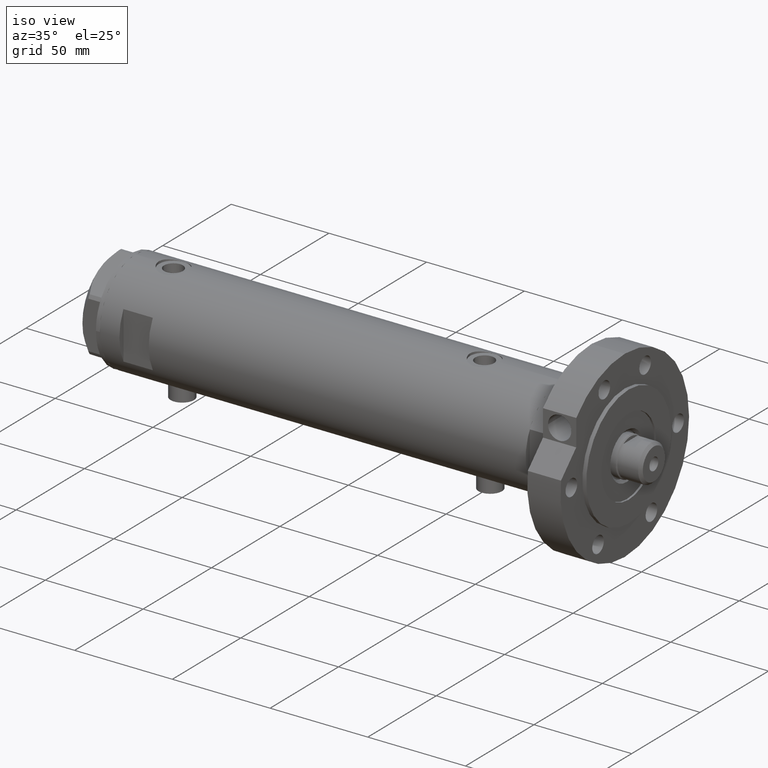
[diagram: clean part render]
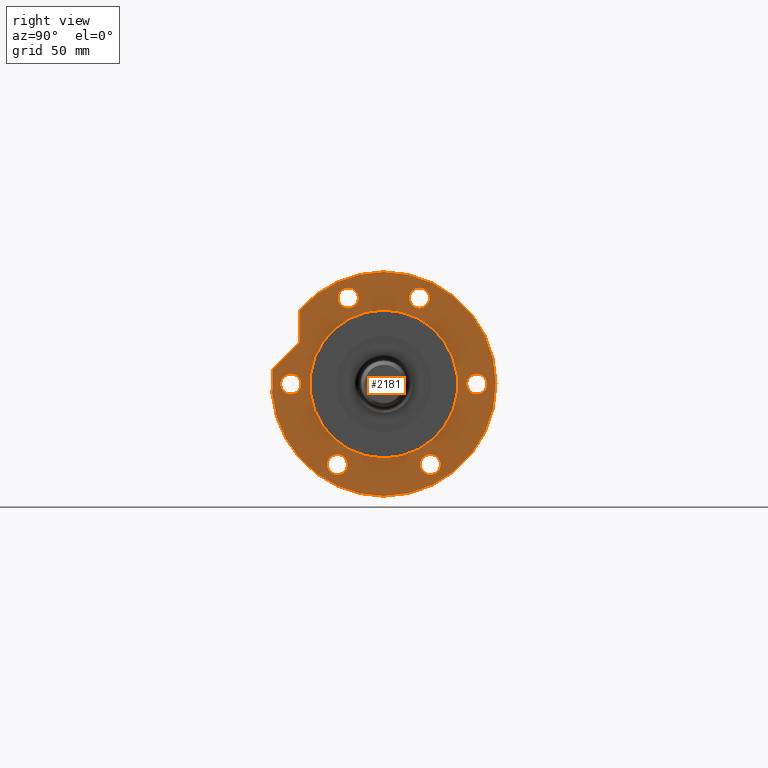
[diagram: tour spotlight — one face highlighted and labeled with its STEP entity id]
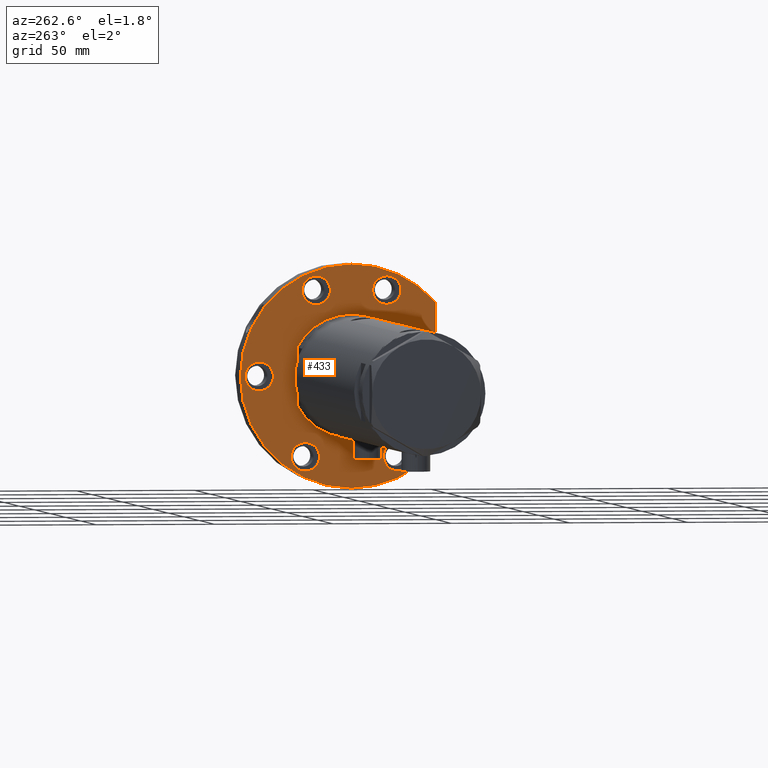
[diagram: tour spotlight — one face highlighted and labeled with its STEP entity id]
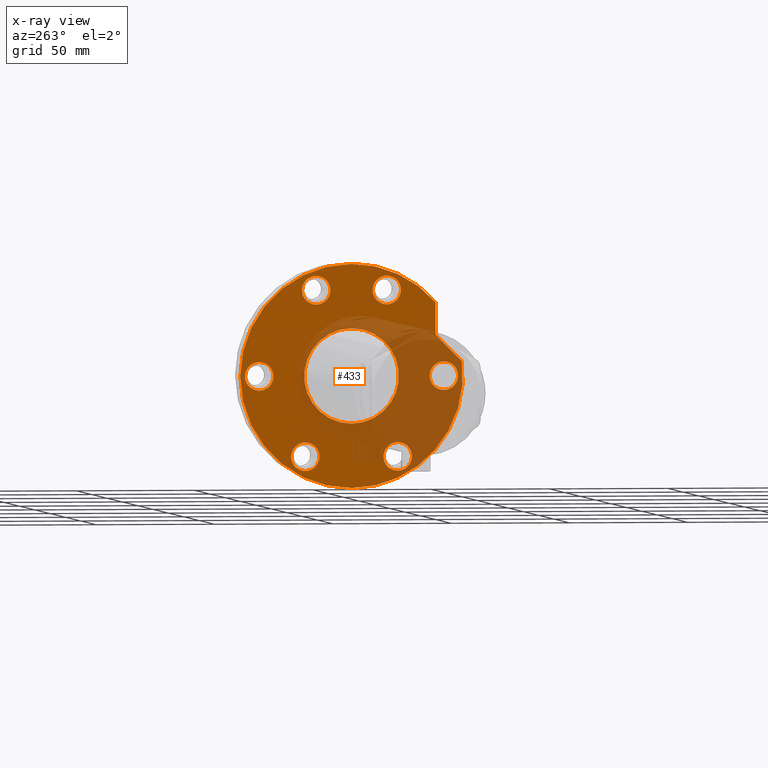
[diagram: x-ray of the same camera — body ghosted, this tour face saturated]
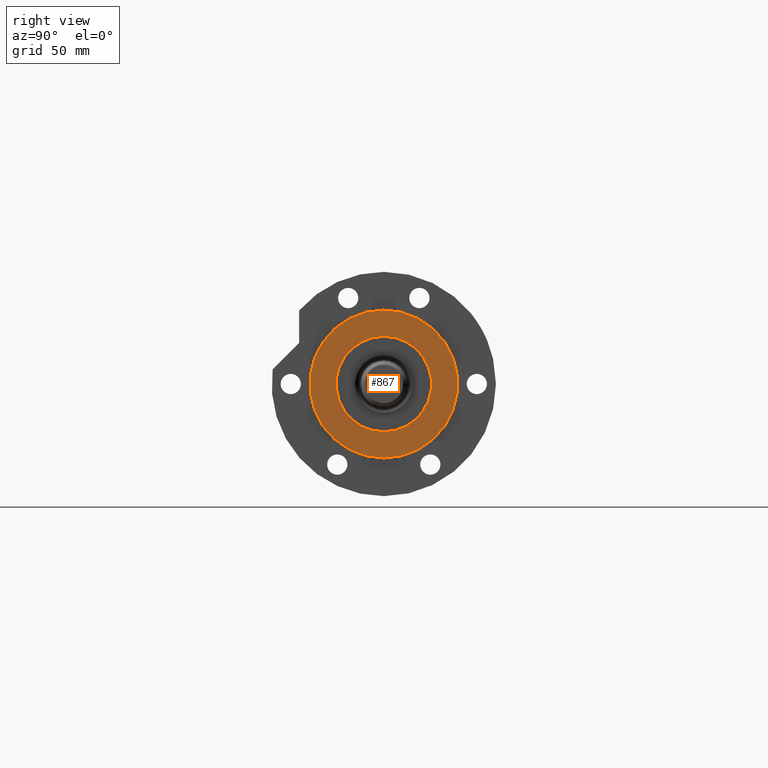
[diagram: tour spotlight — one face highlighted and labeled with its STEP entity id]
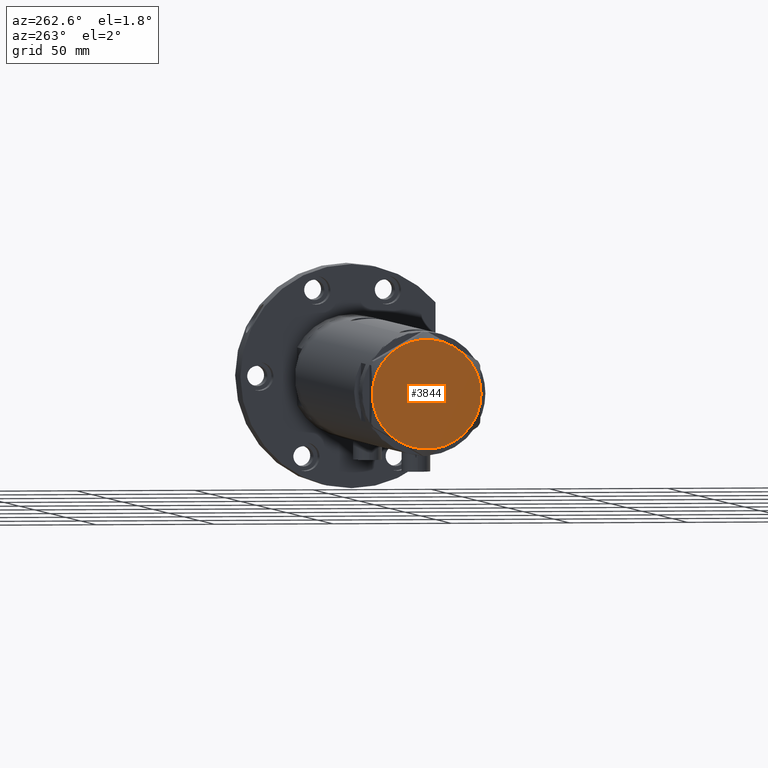
[diagram: tour spotlight — one face highlighted and labeled with its STEP entity id]
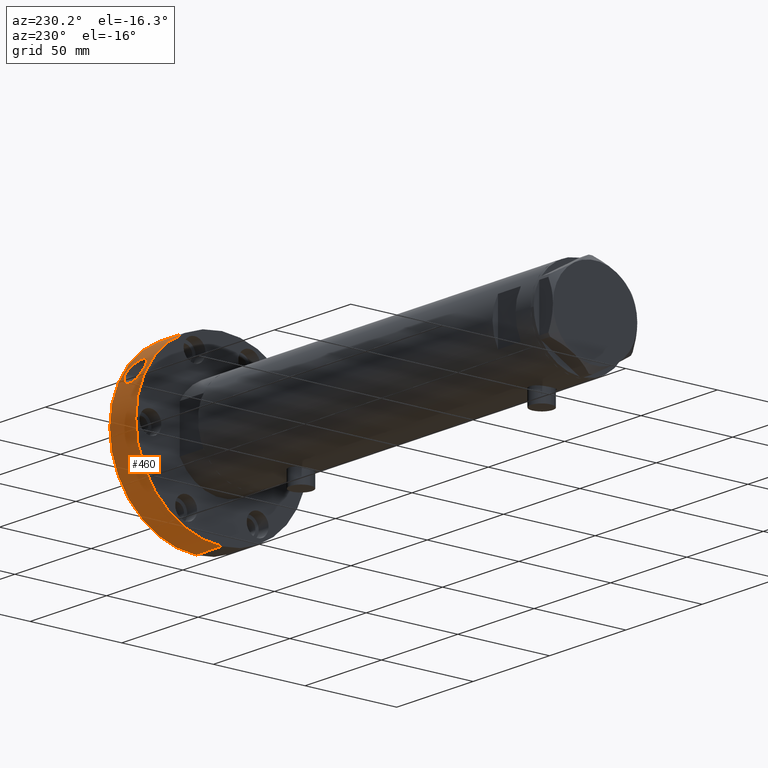
[diagram: tour spotlight — one face highlighted and labeled with its STEP entity id]
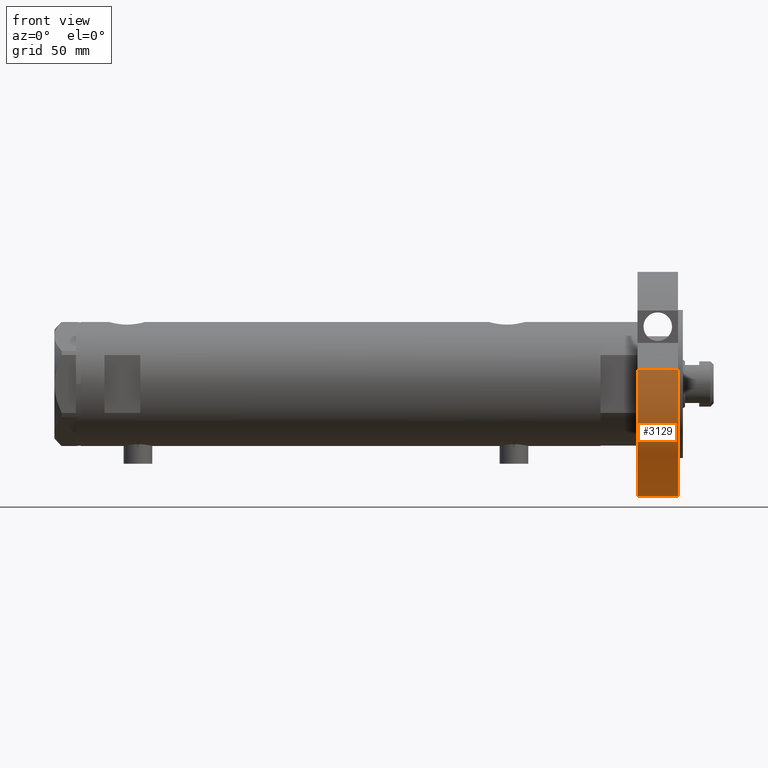
[diagram: tour spotlight — one face highlighted and labeled with its STEP entity id]
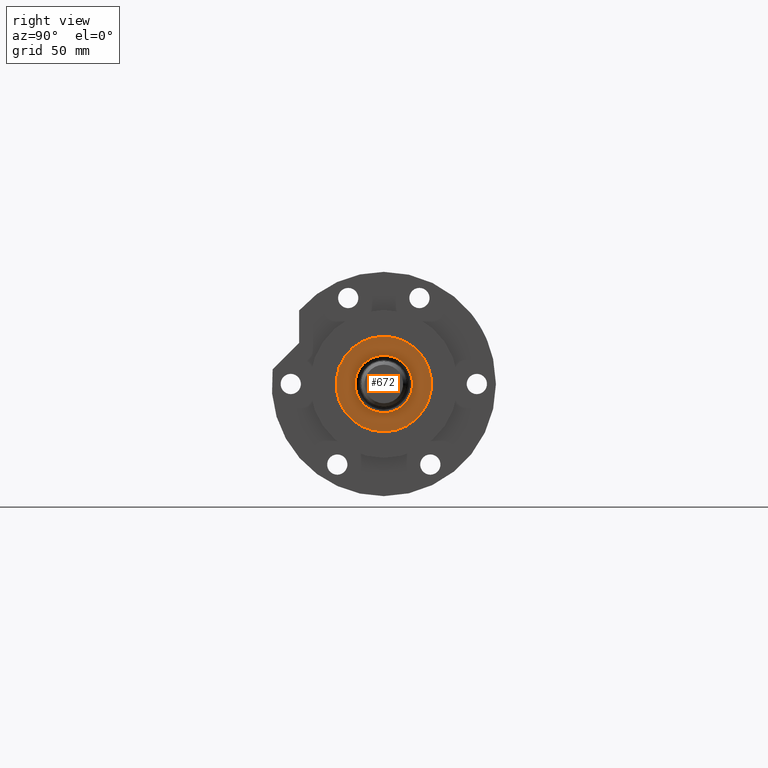
[diagram: tour spotlight — one face highlighted and labeled with its STEP entity id]
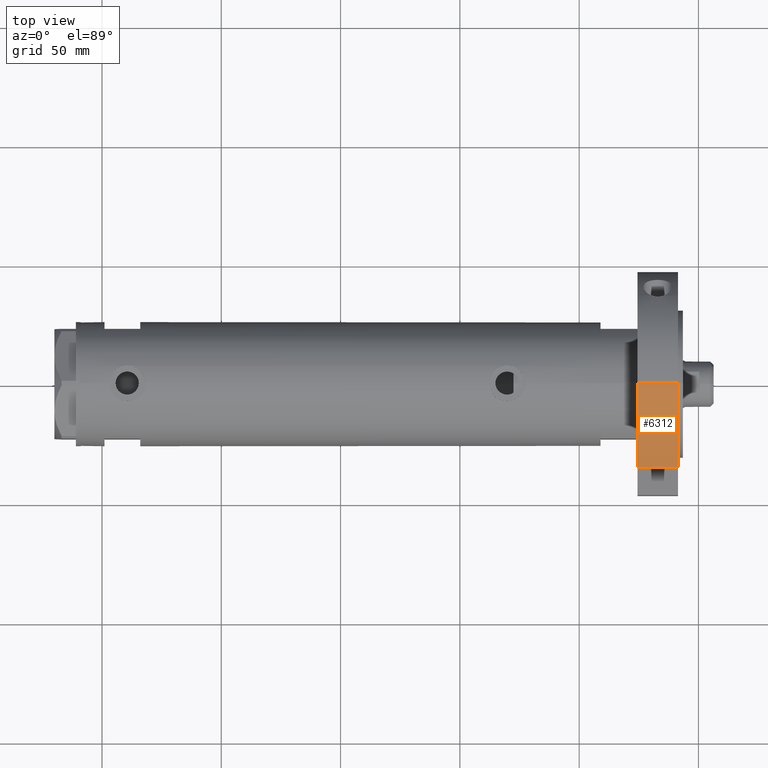
[diagram: tour spotlight — one face highlighted and labeled with its STEP entity id]
A machine part: a face-by-face anatomy tour. The part has 178 B-rep faces; the first image is the clean iso view, then the 8 largest visible faces are spotlighted one at a time (largest first), each with its STEP entity span.

Face 1 — right view, entity #2181. In plain terms, the highlighted planar face has unit normal (1, 0, -0).
Definition (entity closure, byte-faithful):
#61 = ORIENTED_EDGE ( 'NONE', *, *, #4619, .F. ) ;
#69 = DIRECTION ( 'NONE',  ( 1.000000000000000000, 0.000000000000000000, 0.000000000000000000 ) ) ;
#80 = CIRCLE ( 'NONE', #2994, 4.250000000000003553 ) ;
#87 = CARTESIAN_POINT ( 'NONE',  ( 0.000000000000000000, 0.000000000000000000, 17.00000000000000000 ) ) ;
#150 = VERTEX_POINT ( 'NONE', #4144 ) ;
#182 = DIRECTION ( 'NONE',  ( 1.000000000000000000, 0.000000000000000000, -0.000000000000000000 ) ) ;
#187 = VERTEX_POINT ( 'NONE', #2159 ) ;
#189 = VERTEX_POINT ( 'NONE', #3701 ) ;
#199 = CARTESIAN_POINT ( 'NONE',  ( -33.77499074759302289, -19.50000000000015277, 17.00000000000000000 ) ) ;
#241 = CARTESIAN_POINT ( 'NONE',  ( 17.22217135699461110, 35.47361286101150313, 17.00000000000000000 ) ) ;
#304 = AXIS2_PLACEMENT_3D ( 'NONE', #644, #3600, #5658 ) ;
#308 = CARTESIAN_POINT ( 'NONE',  ( -33.77499074759315079, 19.49999999999992539, 17.00000000000000000 ) ) ;
#421 = EDGE_CURVE ( 'NONE', #5502, #150, #6161, .T. ) ;
#464 = CARTESIAN_POINT ( 'NONE',  ( 36.03130176794011419, -14.92465386223865842, 17.00000000000000000 ) ) ;
#524 = VECTOR ( 'NONE', #747, 1000.000000000000000 ) ;
#529 = CIRCLE ( 'NONE', #1255, 31.00000000000000711 ) ;
#541 = DIRECTION ( 'NONE',  ( 0.7071067811865511255, -0.7071067811865440200, 0.000000000000000000 ) ) ;
#546 = EDGE_CURVE ( 'NONE', #5683, #4160, #80, .T. ) ;
#642 = CARTESIAN_POINT ( 'NONE',  ( 0.000000000000000000, -39.00000000000000000, 17.00000000000000000 ) ) ;
#644 = CARTESIAN_POINT ( 'NONE',  ( 36.03130176794011419, 14.92465386223865842, 17.00000000000000000 ) ) ;
#666 = EDGE_LOOP ( 'NONE', ( #4072, #1490, #2594, #1712, #5416 ) ) ;
#707 = CARTESIAN_POINT ( 'NONE',  ( 0.000000000000000000, 0.000000000000000000, 17.00000000000000000 ) ) ;
#709 = CIRCLE ( 'NONE', #1881, 4.249999999999996447 ) ;
#717 = CARTESIAN_POINT ( 'NONE',  ( 40.28130176794012129, 14.92465386223865842, 17.00000000000000000 ) ) ;
#747 = DIRECTION ( 'NONE',  ( 1.000000000000000000, -1.019675812477181804E-15, 0.000000000000000000 ) ) ;
#759 = DIRECTION ( 'NONE',  ( 0.000000000000000000, 0.000000000000000000, 1.000000000000000000 ) ) ;
#778 = EDGE_CURVE ( 'NONE', #5386, #4404, #709, .T. ) ;
#797 = CARTESIAN_POINT ( 'NONE',  ( 3.617158501555293296E-14, 35.47361286101151734, 17.00000000000000000 ) ) ;
#843 = AXIS2_PLACEMENT_3D ( 'NONE', #3703, #5733, #1244 ) ;
#870 = ORIENTED_EDGE ( 'NONE', *, *, #2601, .F. ) ;
#894 = DIRECTION ( 'NONE',  ( 0.000000000000000000, 0.000000000000000000, 1.000000000000000000 ) ) ;
#959 = DIRECTION ( 'NONE',  ( 0.000000000000000000, 0.000000000000000000, 1.000000000000000000 ) ) ;
#964 = LINE ( 'NONE', #5479, #1828 ) ;
#1089 = CARTESIAN_POINT ( 'NONE',  ( 6.092310621118299352, 46.60347359688769586, 17.00000000000000000 ) ) ;
#1136 = DIRECTION ( 'NONE',  ( 1.000000000000000000, 0.000000000000000000, 0.000000000000000000 ) ) ;
#1140 = EDGE_CURVE ( 'NONE', #5640, #5293, #1771, .T. ) ;
#1193 = EDGE_CURVE ( 'NONE', #1948, #3161, #5202, .T. ) ;
#1239 = DIRECTION ( 'NONE',  ( 0.000000000000000000, 0.000000000000000000, 1.000000000000000000 ) ) ;
#1244 = DIRECTION ( 'NONE',  ( 1.000000000000000000, 0.000000000000000000, 0.000000000000000000 ) ) ;
#1252 = CARTESIAN_POINT ( 'NONE',  ( 36.03130176794011419, 14.92465386223865842, 17.00000000000000000 ) ) ;
#1255 = AXIS2_PLACEMENT_3D ( 'NONE', #2623, #5627, #1136 ) ;
#1268 = AXIS2_PLACEMENT_3D ( 'NONE', #308, #1341, #5856 ) ;
#1319 = FACE_BOUND ( 'NONE', #1964, .T. ) ;
#1341 = DIRECTION ( 'NONE',  ( 0.000000000000000000, 0.000000000000000000, 1.000000000000000000 ) ) ;
#1371 = AXIS2_PLACEMENT_3D ( 'NONE', #2660, #4740, #182 ) ;
#1375 = DIRECTION ( 'NONE',  ( 0.000000000000000000, 0.000000000000000000, 1.000000000000000000 ) ) ;
#1485 = DIRECTION ( 'NONE',  ( 0.000000000000000000, 0.000000000000000000, 1.000000000000000000 ) ) ;
#1490 = ORIENTED_EDGE ( 'NONE', *, *, #5963, .F. ) ;
#1521 = EDGE_LOOP ( 'NONE', ( #3853, #4363 ) ) ;
#1545 = DIRECTION ( 'NONE',  ( 1.000000000000000000, 0.000000000000000000, 0.000000000000000000 ) ) ;
#1554 = CARTESIAN_POINT ( 'NONE',  ( 0.000000000000000000, 0.000000000000000000, 17.00000000000000000 ) ) ;
#1712 = ORIENTED_EDGE ( 'NONE', *, *, #4134, .T. ) ;
#1758 = EDGE_CURVE ( 'NONE', #5293, #5640, #4802, .T. ) ;
#1762 = EDGE_CURVE ( 'NONE', #6177, #187, #529, .T. ) ;
#1771 = CIRCLE ( 'NONE', #6377, 4.250000000000003553 ) ;
#1828 = VECTOR ( 'NONE', #541, 999.9999999999998863 ) ;
#1840 = EDGE_CURVE ( 'NONE', #5361, #3161, #3078, .T. ) ;
#1881 = AXIS2_PLACEMENT_3D ( 'NONE', #5026, #5992, #2126 ) ;
#1915 = EDGE_CURVE ( 'NONE', #4182, #5379, #5536, .T. ) ;
#1932 = EDGE_CURVE ( 'NONE', #4160, #5683, #5213, .T. ) ;
#1948 = VERTEX_POINT ( 'NONE', #3950 ) ;
#1964 = EDGE_LOOP ( 'NONE', ( #6020, #870 ) ) ;
#2126 = DIRECTION ( 'NONE',  ( 1.000000000000000000, 0.000000000000000000, 0.000000000000000000 ) ) ;
#2129 = CIRCLE ( 'NONE', #3569, 4.250000000000000888 ) ;
#2132 = CARTESIAN_POINT ( 'NONE',  ( -29.52499074759315434, 19.49999999999992539, 17.00000000000000000 ) ) ;
#2159 = CARTESIAN_POINT ( 'NONE',  ( 31.00000000000000711, 3.796405077356795904E-15, 17.00000000000000000 ) ) ;
#2181 = ADVANCED_FACE ( 'NONE', ( #4773, #4806, #4310, #2690, #5156, #3769, #2223, #1319 ), #5668, .T. ) ;
#2223 = FACE_OUTER_BOUND ( 'NONE', #666, .T. ) ;
#2224 = EDGE_CURVE ( 'NONE', #5379, #4182, #5113, .T. ) ;
#2487 = AXIS2_PLACEMENT_3D ( 'NONE', #5432, #2921, #1545 ) ;
#2529 = CIRCLE ( 'NONE', #3768, 4.250000000000000888 ) ;
#2544 = DIRECTION ( 'NONE',  ( 1.000000000000000000, 0.000000000000000000, 0.000000000000000000 ) ) ;
#2592 = CIRCLE ( 'NONE', #6288, 31.00000000000000711 ) ;
#2594 = ORIENTED_EDGE ( 'NONE', *, *, #421, .T. ) ;
#2601 = EDGE_CURVE ( 'NONE', #187, #6177, #2592, .T. ) ;
#2620 = DIRECTION ( 'NONE',  ( 0.000000000000000000, 0.000000000000000000, 1.000000000000000000 ) ) ;
#2623 = CARTESIAN_POINT ( 'NONE',  ( 0.000000000000000000, 0.000000000000000000, 17.00000000000000000 ) ) ;
#2660 = CARTESIAN_POINT ( 'NONE',  ( 0.000000000000000000, 0.000000000000000000, 17.00000000000000000 ) ) ;
#2681 = EDGE_CURVE ( 'NONE', #4404, #5386, #4500, .T. ) ;
#2690 = FACE_BOUND ( 'NONE', #3743, .T. ) ;
#2730 = DIRECTION ( 'NONE',  ( 1.000000000000000000, 0.000000000000000000, 0.000000000000000000 ) ) ;
#2826 = AXIS2_PLACEMENT_3D ( 'NONE', #5431, #4381, #4929 ) ;
#2845 = ORIENTED_EDGE ( 'NONE', *, *, #4951, .F. ) ;
#2858 = VERTEX_POINT ( 'NONE', #3240 ) ;
#2864 = ORIENTED_EDGE ( 'NONE', *, *, #1915, .F. ) ;
#2921 = DIRECTION ( 'NONE',  ( 0.000000000000000000, 0.000000000000000000, 1.000000000000000000 ) ) ;
#2928 = CIRCLE ( 'NONE', #5130, 46.99999999999999289 ) ;
#2965 = CARTESIAN_POINT ( 'NONE',  ( -29.52499074759301578, -19.50000000000015277, 17.00000000000000000 ) ) ;
#2994 = AXIS2_PLACEMENT_3D ( 'NONE', #199, #3624, #5649 ) ;
#3069 = ORIENTED_EDGE ( 'NONE', *, *, #6029, .F. ) ;
#3078 = LINE ( 'NONE', #797, #524 ) ;
#3146 = DIRECTION ( 'NONE',  ( 1.000000000000000000, 0.000000000000000000, 0.000000000000000000 ) ) ;
#3161 = VERTEX_POINT ( 'NONE', #5411 ) ;
#3211 = DIRECTION ( 'NONE',  ( 1.000000000000000000, 0.000000000000000000, 0.000000000000000000 ) ) ;
#3240 = CARTESIAN_POINT ( 'NONE',  ( -4.250000000000000888, 39.00000000000000000, 17.00000000000000000 ) ) ;
#3255 = AXIS2_PLACEMENT_3D ( 'NONE', #642, #2620, #3146 ) ;
#3274 = ORIENTED_EDGE ( 'NONE', *, *, #2224, .F. ) ;
#3492 = CARTESIAN_POINT ( 'NONE',  ( 0.000000000000000000, 39.00000000000000000, 17.00000000000000000 ) ) ;
#3569 = AXIS2_PLACEMENT_3D ( 'NONE', #3492, #5074, #69 ) ;
#3575 = DIRECTION ( 'NONE',  ( 1.000000000000000000, 0.000000000000000000, 0.000000000000000000 ) ) ;
#3600 = DIRECTION ( 'NONE',  ( 0.000000000000000000, 0.000000000000000000, 1.000000000000000000 ) ) ;
#3624 = DIRECTION ( 'NONE',  ( 0.000000000000000000, 0.000000000000000000, 1.000000000000000000 ) ) ;
#3701 = CARTESIAN_POINT ( 'NONE',  ( -4.250000000000000888, -39.00000000000000000, 17.00000000000000000 ) ) ;
#3703 = CARTESIAN_POINT ( 'NONE',  ( 36.03130176794011419, -14.92465386223865842, 17.00000000000000000 ) ) ;
#3721 = EDGE_LOOP ( 'NONE', ( #3069, #2845 ) ) ;
#3743 = EDGE_LOOP ( 'NONE', ( #61, #4172 ) ) ;
#3768 = AXIS2_PLACEMENT_3D ( 'NONE', #4834, #1375, #5798 ) ;
#3769 = FACE_BOUND ( 'NONE', #5398, .T. ) ;
#3827 = AXIS2_PLACEMENT_3D ( 'NONE', #87, #6098, #3575 ) ;
#3853 = ORIENTED_EDGE ( 'NONE', *, *, #1758, .F. ) ;
#3920 = CARTESIAN_POINT ( 'NONE',  ( 40.28130176794012129, -14.92465386223865842, 17.00000000000000000 ) ) ;
#3950 = CARTESIAN_POINT ( 'NONE',  ( 46.99999999999999289, 5.755839955992559063E-15, 17.00000000000000000 ) ) ;
#3967 = ORIENTED_EDGE ( 'NONE', *, *, #546, .F. ) ;
#4047 = EDGE_LOOP ( 'NONE', ( #3274, #2864 ) ) ;
#4072 = ORIENTED_EDGE ( 'NONE', *, *, #1840, .F. ) ;
#4134 = EDGE_CURVE ( 'NONE', #150, #1948, #2928, .T. ) ;
#4144 = CARTESIAN_POINT ( 'NONE',  ( -46.99999999999999289, 0.000000000000000000, 17.00000000000000000 ) ) ;
#4160 = VERTEX_POINT ( 'NONE', #2965 ) ;
#4172 = ORIENTED_EDGE ( 'NONE', *, *, #5257, .F. ) ;
#4182 = VERTEX_POINT ( 'NONE', #3920 ) ;
#4310 = FACE_BOUND ( 'NONE', #4047, .T. ) ;
#4363 = ORIENTED_EDGE ( 'NONE', *, *, #1140, .F. ) ;
#4381 = DIRECTION ( 'NONE',  ( 0.000000000000000000, 0.000000000000000000, 1.000000000000000000 ) ) ;
#4404 = VERTEX_POINT ( 'NONE', #2132 ) ;
#4483 = DIRECTION ( 'NONE',  ( 1.000000000000000000, 0.000000000000000000, 0.000000000000000000 ) ) ;
#4500 = CIRCLE ( 'NONE', #1268, 4.249999999999996447 ) ;
#4602 = CARTESIAN_POINT ( 'NONE',  ( 4.250000000000000888, 39.00000000000000000, 17.00000000000000000 ) ) ;
#4619 = EDGE_CURVE ( 'NONE', #189, #5439, #5136, .T. ) ;
#4644 = ORIENTED_EDGE ( 'NONE', *, *, #1932, .F. ) ;
#4728 = CIRCLE ( 'NONE', #3255, 4.250000000000000888 ) ;
#4740 = DIRECTION ( 'NONE',  ( 0.000000000000000000, 0.000000000000000000, 1.000000000000000000 ) ) ;
#4773 = FACE_BOUND ( 'NONE', #3721, .T. ) ;
#4800 = VERTEX_POINT ( 'NONE', #4602 ) ;
#4802 = CIRCLE ( 'NONE', #304, 4.250000000000003553 ) ;
#4806 = FACE_BOUND ( 'NONE', #1521, .T. ) ;
#4834 = CARTESIAN_POINT ( 'NONE',  ( 0.000000000000000000, 39.00000000000000000, 17.00000000000000000 ) ) ;
#4929 = DIRECTION ( 'NONE',  ( 1.000000000000000000, 0.000000000000000000, 0.000000000000000000 ) ) ;
#4951 = EDGE_CURVE ( 'NONE', #4800, #2858, #2529, .T. ) ;
#5005 = AXIS2_PLACEMENT_3D ( 'NONE', #464, #1485, #6002 ) ;
#5026 = CARTESIAN_POINT ( 'NONE',  ( -33.77499074759315079, 19.49999999999992539, 17.00000000000000000 ) ) ;
#5074 = DIRECTION ( 'NONE',  ( 0.000000000000000000, 0.000000000000000000, 1.000000000000000000 ) ) ;
#5113 = CIRCLE ( 'NONE', #843, 4.250000000000003553 ) ;
#5130 = AXIS2_PLACEMENT_3D ( 'NONE', #1554, #959, #2544 ) ;
#5136 = CIRCLE ( 'NONE', #2826, 4.250000000000000888 ) ;
#5156 = FACE_BOUND ( 'NONE', #5835, .T. ) ;
#5199 = CARTESIAN_POINT ( 'NONE',  ( -31.00000000000000711, 0.000000000000000000, 17.00000000000000000 ) ) ;
#5202 = CIRCLE ( 'NONE', #2487, 46.99999999999999289 ) ;
#5213 = CIRCLE ( 'NONE', #5857, 4.250000000000003553 ) ;
#5238 = ORIENTED_EDGE ( 'NONE', *, *, #778, .F. ) ;
#5257 = EDGE_CURVE ( 'NONE', #5439, #189, #4728, .T. ) ;
#5293 = VERTEX_POINT ( 'NONE', #5519 ) ;
#5361 = VERTEX_POINT ( 'NONE', #241 ) ;
#5379 = VERTEX_POINT ( 'NONE', #6101 ) ;
#5386 = VERTEX_POINT ( 'NONE', #6282 ) ;
#5398 = EDGE_LOOP ( 'NONE', ( #5238, #6039 ) ) ;
#5411 = CARTESIAN_POINT ( 'NONE',  ( 30.83217135699462830, 35.47361286101148892, 17.00000000000000000 ) ) ;
#5416 = ORIENTED_EDGE ( 'NONE', *, *, #1193, .T. ) ;
#5431 = CARTESIAN_POINT ( 'NONE',  ( 0.000000000000000000, -39.00000000000000000, 17.00000000000000000 ) ) ;
#5432 = CARTESIAN_POINT ( 'NONE',  ( 0.000000000000000000, 0.000000000000000000, 17.00000000000000000 ) ) ;
#5436 = CARTESIAN_POINT ( 'NONE',  ( -33.77499074759302289, -19.50000000000015277, 17.00000000000000000 ) ) ;
#5439 = VERTEX_POINT ( 'NONE', #5571 ) ;
#5479 = CARTESIAN_POINT ( 'NONE',  ( 26.34789210900296652, 26.34789210900323297, 17.00000000000000000 ) ) ;
#5502 = VERTEX_POINT ( 'NONE', #1089 ) ;
#5519 = CARTESIAN_POINT ( 'NONE',  ( 31.78130176794011064, 14.92465386223865842, 17.00000000000000000 ) ) ;
#5536 = CIRCLE ( 'NONE', #5005, 4.250000000000003553 ) ;
#5571 = CARTESIAN_POINT ( 'NONE',  ( 4.250000000000000888, -39.00000000000000000, 17.00000000000000000 ) ) ;
#5627 = DIRECTION ( 'NONE',  ( 0.000000000000000000, 0.000000000000000000, 1.000000000000000000 ) ) ;
#5640 = VERTEX_POINT ( 'NONE', #717 ) ;
#5649 = DIRECTION ( 'NONE',  ( 1.000000000000000000, 0.000000000000000000, 0.000000000000000000 ) ) ;
#5658 = DIRECTION ( 'NONE',  ( 1.000000000000000000, 0.000000000000000000, 0.000000000000000000 ) ) ;
#5668 = PLANE ( 'NONE',  #1371 ) ;
#5683 = VERTEX_POINT ( 'NONE', #6138 ) ;
#5733 = DIRECTION ( 'NONE',  ( 0.000000000000000000, 0.000000000000000000, 1.000000000000000000 ) ) ;
#5798 = DIRECTION ( 'NONE',  ( 1.000000000000000000, 0.000000000000000000, 0.000000000000000000 ) ) ;
#5835 = EDGE_LOOP ( 'NONE', ( #3967, #4644 ) ) ;
#5856 = DIRECTION ( 'NONE',  ( 1.000000000000000000, 0.000000000000000000, 0.000000000000000000 ) ) ;
#5857 = AXIS2_PLACEMENT_3D ( 'NONE', #5436, #894, #4483 ) ;
#5963 = EDGE_CURVE ( 'NONE', #5502, #5361, #964, .T. ) ;
#5992 = DIRECTION ( 'NONE',  ( 0.000000000000000000, 0.000000000000000000, 1.000000000000000000 ) ) ;
#6002 = DIRECTION ( 'NONE',  ( 1.000000000000000000, 0.000000000000000000, 0.000000000000000000 ) ) ;
#6020 = ORIENTED_EDGE ( 'NONE', *, *, #1762, .F. ) ;
#6029 = EDGE_CURVE ( 'NONE', #2858, #4800, #2129, .T. ) ;
#6039 = ORIENTED_EDGE ( 'NONE', *, *, #2681, .F. ) ;
#6098 = DIRECTION ( 'NONE',  ( 0.000000000000000000, 0.000000000000000000, 1.000000000000000000 ) ) ;
#6101 = CARTESIAN_POINT ( 'NONE',  ( 31.78130176794011064, -14.92465386223865842, 17.00000000000000000 ) ) ;
#6138 = CARTESIAN_POINT ( 'NONE',  ( -38.02499074759302289, -19.50000000000015277, 17.00000000000000000 ) ) ;
#6161 = CIRCLE ( 'NONE', #3827, 46.99999999999999289 ) ;
#6177 = VERTEX_POINT ( 'NONE', #5199 ) ;
#6282 = CARTESIAN_POINT ( 'NONE',  ( -38.02499074759315079, 19.49999999999992539, 17.00000000000000000 ) ) ;
#6288 = AXIS2_PLACEMENT_3D ( 'NONE', #707, #1239, #3211 ) ;
#6377 = AXIS2_PLACEMENT_3D ( 'NONE', #1252, #759, #2730 ) ;

Face 2 — auxiliary view, entity #433. An x-ray twin of the same camera follows (body ghosted, this face saturated) — the face is partly hidden behind the body. In plain terms, the highlighted planar face has unit normal (1, 0, -0).
Definition (entity closure, byte-faithful):
#247 = CARTESIAN_POINT ( 'NONE',  ( 6.000000000000000000, -39.00000000000000000, 0.000000000000000000 ) ) ;
#264 = EDGE_LOOP ( 'NONE', ( #4090, #1232 ) ) ;
#273 = ORIENTED_EDGE ( 'NONE', *, *, #6320, .T. ) ;
#287 = CARTESIAN_POINT ( 'NONE',  ( -20.00000000000000000, 2.449293598294706513E-15, 0.000000000000000000 ) ) ;
#330 = PLANE ( 'NONE',  #4886 ) ;
#350 = CARTESIAN_POINT ( 'NONE',  ( 30.83217135699462830, 35.47361286101148892, 0.000000000000000000 ) ) ;
#372 = EDGE_LOOP ( 'NONE', ( #5751, #4521 ) ) ;
#377 = DIRECTION ( 'NONE',  ( 1.000000000000000000, 0.000000000000000000, 0.000000000000000000 ) ) ;
#433 = ADVANCED_FACE ( 'NONE', ( #4822, #1298, #1331, #5372, #1862, #6342, #4290, #2335 ), #330, .F. ) ;
#551 = CIRCLE ( 'NONE', #758, 6.000000000000000000 ) ;
#587 = EDGE_CURVE ( 'NONE', #6446, #1630, #6058, .T. ) ;
#621 = CARTESIAN_POINT ( 'NONE',  ( -6.000000000000000000, -39.00000000000000000, 0.000000000000000000 ) ) ;
#639 = ORIENTED_EDGE ( 'NONE', *, *, #4855, .F. ) ;
#758 = AXIS2_PLACEMENT_3D ( 'NONE', #4734, #811, #2314 ) ;
#811 = DIRECTION ( 'NONE',  ( 0.000000000000000000, 0.000000000000000000, -1.000000000000000000 ) ) ;
#839 = DIRECTION ( 'NONE',  ( 0.000000000000000000, 0.000000000000000000, -1.000000000000000000 ) ) ;
#859 = VERTEX_POINT ( 'NONE', #5531 ) ;
#899 = VERTEX_POINT ( 'NONE', #1213 ) ;
#922 = CARTESIAN_POINT ( 'NONE',  ( -39.77499074759302289, -19.50000000000015277, 0.000000000000000000 ) ) ;
#934 = AXIS2_PLACEMENT_3D ( 'NONE', #5594, #2982, #2031 ) ;
#999 = CARTESIAN_POINT ( 'NONE',  ( -39.77499074759315079, 19.49999999999992539, 0.000000000000000000 ) ) ;
#1028 = DIRECTION ( 'NONE',  ( 1.000000000000000000, 0.000000000000000000, 0.000000000000000000 ) ) ;
#1043 = AXIS2_PLACEMENT_3D ( 'NONE', #3982, #1450, #3485 ) ;
#1092 = CIRCLE ( 'NONE', #5054, 20.00000000000000000 ) ;
#1128 = ORIENTED_EDGE ( 'NONE', *, *, #2877, .F. ) ;
#1158 = ORIENTED_EDGE ( 'NONE', *, *, #1634, .F. ) ;
#1167 = DIRECTION ( 'NONE',  ( -1.000000000000000000, 0.000000000000000000, 0.000000000000000000 ) ) ;
#1179 = DIRECTION ( 'NONE',  ( 0.000000000000000000, 0.000000000000000000, -1.000000000000000000 ) ) ;
#1213 = CARTESIAN_POINT ( 'NONE',  ( -46.99999999999999289, 0.000000000000000000, 0.000000000000000000 ) ) ;
#1214 = CARTESIAN_POINT ( 'NONE',  ( 36.03130176794011419, 14.92465386223865842, 0.000000000000000000 ) ) ;
#1232 = ORIENTED_EDGE ( 'NONE', *, *, #5024, .F. ) ;
#1233 = DIRECTION ( 'NONE',  ( 0.000000000000000000, 0.000000000000000000, -1.000000000000000000 ) ) ;
#1249 = CIRCLE ( 'NONE', #934, 46.99999999999999289 ) ;
#1280 = DIRECTION ( 'NONE',  ( 0.000000000000000000, 0.000000000000000000, -1.000000000000000000 ) ) ;
#1298 = FACE_BOUND ( 'NONE', #4419, .T. ) ;
#1327 = LINE ( 'NONE', #4752, #5259 ) ;
#1331 = FACE_BOUND ( 'NONE', #4623, .T. ) ;
#1361 = VERTEX_POINT ( 'NONE', #350 ) ;
#1399 = EDGE_CURVE ( 'NONE', #5532, #4114, #5206, .T. ) ;
#1450 = DIRECTION ( 'NONE',  ( 0.000000000000000000, 0.000000000000000000, 1.000000000000000000 ) ) ;
#1458 = CARTESIAN_POINT ( 'NONE',  ( 0.000000000000000000, 0.000000000000000000, 0.000000000000000000 ) ) ;
#1556 = EDGE_CURVE ( 'NONE', #5748, #899, #1249, .T. ) ;
#1605 = AXIS2_PLACEMENT_3D ( 'NONE', #4164, #3634, #6132 ) ;
#1608 = LINE ( 'NONE', #1700, #4835 ) ;
#1630 = VERTEX_POINT ( 'NONE', #287 ) ;
#1634 = EDGE_CURVE ( 'NONE', #4406, #2424, #1777, .T. ) ;
#1680 = CIRCLE ( 'NONE', #5324, 46.99999999999999289 ) ;
#1700 = CARTESIAN_POINT ( 'NONE',  ( 17.22217135699461110, 35.47361286101150313, 0.000000000000000000 ) ) ;
#1730 = VERTEX_POINT ( 'NONE', #2209 ) ;
#1748 = EDGE_CURVE ( 'NONE', #5996, #6436, #3336, .T. ) ;
#1749 = ORIENTED_EDGE ( 'NONE', *, *, #6081, .T. ) ;
#1777 = CIRCLE ( 'NONE', #4587, 6.000000000000000888 ) ;
#1815 = CIRCLE ( 'NONE', #6309, 6.000000000000005329 ) ;
#1818 = DIRECTION ( 'NONE',  ( -1.000000000000000000, 0.000000000000000000, 0.000000000000000000 ) ) ;
#1824 = CARTESIAN_POINT ( 'NONE',  ( 0.000000000000000000, 0.000000000000000000, 0.000000000000000000 ) ) ;
#1862 = FACE_BOUND ( 'NONE', #264, .T. ) ;
#1868 = ORIENTED_EDGE ( 'NONE', *, *, #4660, .F. ) ;
#1893 = DIRECTION ( 'NONE',  ( 0.7071067811865511255, -0.7071067811865440200, -0.000000000000000000 ) ) ;
#1903 = AXIS2_PLACEMENT_3D ( 'NONE', #2150, #3205, #1167 ) ;
#1935 = VERTEX_POINT ( 'NONE', #922 ) ;
#1962 = EDGE_CURVE ( 'NONE', #899, #1730, #2588, .T. ) ;
#2014 = DIRECTION ( 'NONE',  ( -1.000000000000000000, 0.000000000000000000, 0.000000000000000000 ) ) ;
#2031 = DIRECTION ( 'NONE',  ( 1.000000000000000000, 0.000000000000000000, 0.000000000000000000 ) ) ;
#2072 = VERTEX_POINT ( 'NONE', #621 ) ;
#2146 = EDGE_CURVE ( 'NONE', #859, #2612, #3732, .T. ) ;
#2150 = CARTESIAN_POINT ( 'NONE',  ( 36.03130176794011419, 14.92465386223865842, 0.000000000000000000 ) ) ;
#2204 = CIRCLE ( 'NONE', #6085, 6.000000000000000888 ) ;
#2209 = CARTESIAN_POINT ( 'NONE',  ( 46.99999999999999289, 5.755839955992559063E-15, 0.000000000000000000 ) ) ;
#2294 = CARTESIAN_POINT ( 'NONE',  ( 0.000000000000000000, 39.00000000000000000, 0.000000000000000000 ) ) ;
#2306 = DIRECTION ( 'NONE',  ( -1.000000000000000000, 0.000000000000000000, 0.000000000000000000 ) ) ;
#2314 = DIRECTION ( 'NONE',  ( -1.000000000000000000, 0.000000000000000000, 0.000000000000000000 ) ) ;
#2335 = FACE_OUTER_BOUND ( 'NONE', #3297, .T. ) ;
#2346 = EDGE_CURVE ( 'NONE', #1730, #1361, #1680, .T. ) ;
#2420 = DIRECTION ( 'NONE',  ( 0.000000000000000000, 0.000000000000000000, -1.000000000000000000 ) ) ;
#2424 = VERTEX_POINT ( 'NONE', #5561 ) ;
#2479 = AXIS2_PLACEMENT_3D ( 'NONE', #2746, #3314, #5250 ) ;
#2588 = CIRCLE ( 'NONE', #1043, 46.99999999999999289 ) ;
#2612 = VERTEX_POINT ( 'NONE', #4859 ) ;
#2746 = CARTESIAN_POINT ( 'NONE',  ( 0.000000000000000000, 0.000000000000000000, 0.000000000000000000 ) ) ;
#2796 = CARTESIAN_POINT ( 'NONE',  ( -33.77499074759315079, 19.49999999999992539, 0.000000000000000000 ) ) ;
#2877 = EDGE_CURVE ( 'NONE', #2612, #859, #5015, .T. ) ;
#2901 = CARTESIAN_POINT ( 'NONE',  ( 6.092310621118299352, 46.60347359688769586, 0.000000000000000000 ) ) ;
#2982 = DIRECTION ( 'NONE',  ( 0.000000000000000000, 0.000000000000000000, 1.000000000000000000 ) ) ;
#3062 = EDGE_CURVE ( 'NONE', #2424, #4406, #2204, .T. ) ;
#3205 = DIRECTION ( 'NONE',  ( 0.000000000000000000, 0.000000000000000000, -1.000000000000000000 ) ) ;
#3270 = AXIS2_PLACEMENT_3D ( 'NONE', #3486, #2420, #2014 ) ;
#3290 = EDGE_CURVE ( 'NONE', #1935, #4902, #4402, .T. ) ;
#3297 = EDGE_LOOP ( 'NONE', ( #273, #5231, #6369, #5349, #6180 ) ) ;
#3314 = DIRECTION ( 'NONE',  ( 0.000000000000000000, 0.000000000000000000, 1.000000000000000000 ) ) ;
#3336 = CIRCLE ( 'NONE', #6179, 5.999999999999998224 ) ;
#3360 = CARTESIAN_POINT ( 'NONE',  ( 36.03130176794011419, -14.92465386223865842, 0.000000000000000000 ) ) ;
#3363 = CIRCLE ( 'NONE', #1605, 5.999999999999998224 ) ;
#3485 = DIRECTION ( 'NONE',  ( 1.000000000000000000, 0.000000000000000000, 0.000000000000000000 ) ) ;
#3486 = CARTESIAN_POINT ( 'NONE',  ( 0.000000000000000000, -39.00000000000000000, 0.000000000000000000 ) ) ;
#3495 = CARTESIAN_POINT ( 'NONE',  ( -33.77499074759302289, -19.50000000000015277, 0.000000000000000000 ) ) ;
#3500 = ORIENTED_EDGE ( 'NONE', *, *, #587, .T. ) ;
#3634 = DIRECTION ( 'NONE',  ( 0.000000000000000000, 0.000000000000000000, -1.000000000000000000 ) ) ;
#3732 = CIRCLE ( 'NONE', #4591, 5.999999999999998224 ) ;
#3738 = CIRCLE ( 'NONE', #4595, 5.999999999999998224 ) ;
#3749 = DIRECTION ( 'NONE',  ( 0.000000000000000000, 0.000000000000000000, -1.000000000000000000 ) ) ;
#3786 = ORIENTED_EDGE ( 'NONE', *, *, #1399, .F. ) ;
#3809 = DIRECTION ( 'NONE',  ( -1.000000000000000000, 0.000000000000000000, 0.000000000000000000 ) ) ;
#3817 = DIRECTION ( 'NONE',  ( 0.000000000000000000, 0.000000000000000000, -1.000000000000000000 ) ) ;
#3868 = EDGE_LOOP ( 'NONE', ( #4420, #1158 ) ) ;
#3903 = VERTEX_POINT ( 'NONE', #5679 ) ;
#3918 = CARTESIAN_POINT ( 'NONE',  ( -27.77499074759315434, 19.49999999999992539, 0.000000000000000000 ) ) ;
#3982 = CARTESIAN_POINT ( 'NONE',  ( 0.000000000000000000, 0.000000000000000000, 0.000000000000000000 ) ) ;
#4070 = DIRECTION ( 'NONE',  ( 1.000000000000000000, -1.019675812477181606E-15, 0.000000000000000000 ) ) ;
#4078 = EDGE_CURVE ( 'NONE', #6436, #5996, #3738, .T. ) ;
#4090 = ORIENTED_EDGE ( 'NONE', *, *, #3290, .F. ) ;
#4114 = VERTEX_POINT ( 'NONE', #5004 ) ;
#4164 = CARTESIAN_POINT ( 'NONE',  ( 36.03130176794011419, -14.92465386223865842, 0.000000000000000000 ) ) ;
#4209 = CIRCLE ( 'NONE', #3270, 6.000000000000000000 ) ;
#4230 = ORIENTED_EDGE ( 'NONE', *, *, #6476, .F. ) ;
#4290 = FACE_BOUND ( 'NONE', #4714, .T. ) ;
#4311 = DIRECTION ( 'NONE',  ( 0.000000000000000000, 0.000000000000000000, -1.000000000000000000 ) ) ;
#4348 = CARTESIAN_POINT ( 'NONE',  ( 0.000000000000000000, 0.000000000000000000, 0.000000000000000000 ) ) ;
#4358 = EDGE_LOOP ( 'NONE', ( #639, #4230 ) ) ;
#4402 = CIRCLE ( 'NONE', #5449, 6.000000000000005329 ) ;
#4406 = VERTEX_POINT ( 'NONE', #5704 ) ;
#4408 = ORIENTED_EDGE ( 'NONE', *, *, #2146, .F. ) ;
#4419 = EDGE_LOOP ( 'NONE', ( #4408, #1128 ) ) ;
#4420 = ORIENTED_EDGE ( 'NONE', *, *, #3062, .F. ) ;
#4453 = CARTESIAN_POINT ( 'NONE',  ( 20.00000000000000000, 0.000000000000000000, 0.000000000000000000 ) ) ;
#4492 = DIRECTION ( 'NONE',  ( 0.000000000000000000, 0.000000000000000000, 1.000000000000000000 ) ) ;
#4521 = ORIENTED_EDGE ( 'NONE', *, *, #4078, .F. ) ;
#4587 = AXIS2_PLACEMENT_3D ( 'NONE', #2294, #3749, #1818 ) ;
#4591 = AXIS2_PLACEMENT_3D ( 'NONE', #1214, #1280, #5261 ) ;
#4595 = AXIS2_PLACEMENT_3D ( 'NONE', #2796, #3817, #6373 ) ;
#4623 = EDGE_LOOP ( 'NONE', ( #3786, #1868 ) ) ;
#4660 = EDGE_CURVE ( 'NONE', #4114, #5532, #3363, .T. ) ;
#4714 = EDGE_LOOP ( 'NONE', ( #3500, #1749 ) ) ;
#4734 = CARTESIAN_POINT ( 'NONE',  ( 0.000000000000000000, -39.00000000000000000, 0.000000000000000000 ) ) ;
#4752 = CARTESIAN_POINT ( 'NONE',  ( 17.22217135699461110, 35.47361286101150313, 0.000000000000000000 ) ) ;
#4801 = CARTESIAN_POINT ( 'NONE',  ( -27.77499074759301578, -19.50000000000015277, 0.000000000000000000 ) ) ;
#4822 = FACE_BOUND ( 'NONE', #3868, .T. ) ;
#4823 = EDGE_CURVE ( 'NONE', #3903, #1361, #1608, .T. ) ;
#4835 = VECTOR ( 'NONE', #4070, 1000.000000000000000 ) ;
#4855 = EDGE_CURVE ( 'NONE', #2072, #4911, #551, .T. ) ;
#4859 = CARTESIAN_POINT ( 'NONE',  ( 42.03130176794011419, 14.92465386223865842, 0.000000000000000000 ) ) ;
#4880 = DIRECTION ( 'NONE',  ( 1.000000000000000000, 0.000000000000000000, -0.000000000000000000 ) ) ;
#4886 = AXIS2_PLACEMENT_3D ( 'NONE', #1824, #6304, #4880 ) ;
#4902 = VERTEX_POINT ( 'NONE', #4801 ) ;
#4911 = VERTEX_POINT ( 'NONE', #247 ) ;
#5004 = CARTESIAN_POINT ( 'NONE',  ( 42.03130176794011419, -14.92465386223865842, 0.000000000000000000 ) ) ;
#5015 = CIRCLE ( 'NONE', #1903, 5.999999999999998224 ) ;
#5024 = EDGE_CURVE ( 'NONE', #4902, #1935, #1815, .T. ) ;
#5054 = AXIS2_PLACEMENT_3D ( 'NONE', #1458, #4492, #1028 ) ;
#5157 = DIRECTION ( 'NONE',  ( -1.000000000000000000, 0.000000000000000000, 0.000000000000000000 ) ) ;
#5206 = CIRCLE ( 'NONE', #6173, 5.999999999999998224 ) ;
#5231 = ORIENTED_EDGE ( 'NONE', *, *, #4823, .T. ) ;
#5250 = DIRECTION ( 'NONE',  ( 1.000000000000000000, 0.000000000000000000, 0.000000000000000000 ) ) ;
#5259 = VECTOR ( 'NONE', #1893, 999.9999999999998863 ) ;
#5261 = DIRECTION ( 'NONE',  ( -1.000000000000000000, 0.000000000000000000, 0.000000000000000000 ) ) ;
#5324 = AXIS2_PLACEMENT_3D ( 'NONE', #4348, #6360, #377 ) ;
#5349 = ORIENTED_EDGE ( 'NONE', *, *, #1962, .F. ) ;
#5350 = DIRECTION ( 'NONE',  ( 0.000000000000000000, 0.000000000000000000, -1.000000000000000000 ) ) ;
#5372 = FACE_BOUND ( 'NONE', #4358, .T. ) ;
#5449 = AXIS2_PLACEMENT_3D ( 'NONE', #3495, #1179, #5157 ) ;
#5472 = CARTESIAN_POINT ( 'NONE',  ( 30.03130176794011774, -14.92465386223865842, 0.000000000000000000 ) ) ;
#5531 = CARTESIAN_POINT ( 'NONE',  ( 30.03130176794011774, 14.92465386223865842, 0.000000000000000000 ) ) ;
#5532 = VERTEX_POINT ( 'NONE', #5472 ) ;
#5561 = CARTESIAN_POINT ( 'NONE',  ( -6.000000000000000888, 39.00000000000000000, 0.000000000000000000 ) ) ;
#5594 = CARTESIAN_POINT ( 'NONE',  ( 0.000000000000000000, 0.000000000000000000, 0.000000000000000000 ) ) ;
#5679 = CARTESIAN_POINT ( 'NONE',  ( 17.22217135699460755, 35.47361286101150313, 0.000000000000000000 ) ) ;
#5687 = CARTESIAN_POINT ( 'NONE',  ( -33.77499074759315079, 19.49999999999992539, 0.000000000000000000 ) ) ;
#5704 = CARTESIAN_POINT ( 'NONE',  ( 6.000000000000000888, 39.00000000000000000, 0.000000000000000000 ) ) ;
#5748 = VERTEX_POINT ( 'NONE', #2901 ) ;
#5751 = ORIENTED_EDGE ( 'NONE', *, *, #1748, .F. ) ;
#5791 = CARTESIAN_POINT ( 'NONE',  ( 0.000000000000000000, 39.00000000000000000, 0.000000000000000000 ) ) ;
#5951 = CARTESIAN_POINT ( 'NONE',  ( -33.77499074759302289, -19.50000000000015277, 0.000000000000000000 ) ) ;
#5996 = VERTEX_POINT ( 'NONE', #999 ) ;
#6058 = CIRCLE ( 'NONE', #2479, 20.00000000000000000 ) ;
#6081 = EDGE_CURVE ( 'NONE', #1630, #6446, #1092, .T. ) ;
#6085 = AXIS2_PLACEMENT_3D ( 'NONE', #5791, #839, #2306 ) ;
#6132 = DIRECTION ( 'NONE',  ( -1.000000000000000000, 0.000000000000000000, 0.000000000000000000 ) ) ;
#6173 = AXIS2_PLACEMENT_3D ( 'NONE', #3360, #4311, #3809 ) ;
#6179 = AXIS2_PLACEMENT_3D ( 'NONE', #5687, #1233, #6246 ) ;
#6180 = ORIENTED_EDGE ( 'NONE', *, *, #1556, .F. ) ;
#6246 = DIRECTION ( 'NONE',  ( -1.000000000000000000, 0.000000000000000000, 0.000000000000000000 ) ) ;
#6304 = DIRECTION ( 'NONE',  ( 0.000000000000000000, 0.000000000000000000, 1.000000000000000000 ) ) ;
#6309 = AXIS2_PLACEMENT_3D ( 'NONE', #5951, #5350, #6391 ) ;
#6320 = EDGE_CURVE ( 'NONE', #5748, #3903, #1327, .T. ) ;
#6342 = FACE_BOUND ( 'NONE', #372, .T. ) ;
#6360 = DIRECTION ( 'NONE',  ( 0.000000000000000000, 0.000000000000000000, 1.000000000000000000 ) ) ;
#6369 = ORIENTED_EDGE ( 'NONE', *, *, #2346, .F. ) ;
#6373 = DIRECTION ( 'NONE',  ( -1.000000000000000000, 0.000000000000000000, 0.000000000000000000 ) ) ;
#6391 = DIRECTION ( 'NONE',  ( -1.000000000000000000, 0.000000000000000000, 0.000000000000000000 ) ) ;
#6436 = VERTEX_POINT ( 'NONE', #3918 ) ;
#6446 = VERTEX_POINT ( 'NONE', #4453 ) ;
#6476 = EDGE_CURVE ( 'NONE', #4911, #2072, #4209, .T. ) ;

Face 3 — right view, entity #867. In plain terms, the highlighted planar face has unit normal (1, 0, -0).
Definition (entity closure, byte-faithful):
#104 = ORIENTED_EDGE ( 'NONE', *, *, #5336, .T. ) ;
#186 = CARTESIAN_POINT ( 'NONE',  ( -20.00000000000000000, 2.449293598294706513E-15, 19.00000000000000355 ) ) ;
#276 = CARTESIAN_POINT ( 'NONE',  ( 0.000000000000000000, 0.000000000000000000, 19.00000000000000355 ) ) ;
#311 = CARTESIAN_POINT ( 'NONE',  ( 0.000000000000000000, 0.000000000000000000, 19.00000000000000355 ) ) ;
#336 = DIRECTION ( 'NONE',  ( 0.000000000000000000, 0.000000000000000000, 1.000000000000000000 ) ) ;
#353 = CARTESIAN_POINT ( 'NONE',  ( 31.00000000000000711, 3.796405077356795904E-15, 19.00000000000000355 ) ) ;
#458 = CARTESIAN_POINT ( 'NONE',  ( 0.000000000000000000, 0.000000000000000000, 19.00000000000000355 ) ) ;
#749 = DIRECTION ( 'NONE',  ( 1.000000000000000000, 0.000000000000000000, -0.000000000000000000 ) ) ;
#833 = CIRCLE ( 'NONE', #6276, 20.00000000000000000 ) ;
#867 = ADVANCED_FACE ( 'NONE', ( #1671, #5666 ), #5221, .T. ) ;
#1077 = DIRECTION ( 'NONE',  ( 1.000000000000000000, 0.000000000000000000, 0.000000000000000000 ) ) ;
#1143 = EDGE_CURVE ( 'NONE', #6344, #5539, #5524, .T. ) ;
#1279 = EDGE_CURVE ( 'NONE', #5539, #6344, #833, .T. ) ;
#1516 = EDGE_CURVE ( 'NONE', #6465, #3246, #2491, .T. ) ;
#1531 = CARTESIAN_POINT ( 'NONE',  ( -31.00000000000000711, 0.000000000000000000, 19.00000000000000355 ) ) ;
#1609 = AXIS2_PLACEMENT_3D ( 'NONE', #5082, #336, #5308 ) ;
#1671 = FACE_BOUND ( 'NONE', #2894, .T. ) ;
#1705 = DIRECTION ( 'NONE',  ( 0.000000000000000000, 0.000000000000000000, 1.000000000000000000 ) ) ;
#1782 = DIRECTION ( 'NONE',  ( 0.000000000000000000, 0.000000000000000000, 1.000000000000000000 ) ) ;
#1856 = CARTESIAN_POINT ( 'NONE',  ( 20.00000000000000000, 0.000000000000000000, 19.00000000000000355 ) ) ;
#2051 = EDGE_LOOP ( 'NONE', ( #104, #5904 ) ) ;
#2357 = ORIENTED_EDGE ( 'NONE', *, *, #1143, .F. ) ;
#2466 = ORIENTED_EDGE ( 'NONE', *, *, #1279, .F. ) ;
#2491 = CIRCLE ( 'NONE', #5103, 31.00000000000000711 ) ;
#2888 = DIRECTION ( 'NONE',  ( 1.000000000000000000, 0.000000000000000000, 0.000000000000000000 ) ) ;
#2894 = EDGE_LOOP ( 'NONE', ( #2357, #2466 ) ) ;
#3246 = VERTEX_POINT ( 'NONE', #1531 ) ;
#3832 = AXIS2_PLACEMENT_3D ( 'NONE', #276, #1705, #749 ) ;
#3870 = DIRECTION ( 'NONE',  ( 0.000000000000000000, 0.000000000000000000, 1.000000000000000000 ) ) ;
#4421 = CIRCLE ( 'NONE', #1609, 31.00000000000000711 ) ;
#4750 = CARTESIAN_POINT ( 'NONE',  ( 0.000000000000000000, 0.000000000000000000, 19.00000000000000355 ) ) ;
#5082 = CARTESIAN_POINT ( 'NONE',  ( 0.000000000000000000, 0.000000000000000000, 19.00000000000000355 ) ) ;
#5103 = AXIS2_PLACEMENT_3D ( 'NONE', #311, #3870, #5953 ) ;
#5221 = PLANE ( 'NONE',  #3832 ) ;
#5308 = DIRECTION ( 'NONE',  ( 1.000000000000000000, 0.000000000000000000, 0.000000000000000000 ) ) ;
#5309 = AXIS2_PLACEMENT_3D ( 'NONE', #4750, #1782, #1077 ) ;
#5336 = EDGE_CURVE ( 'NONE', #3246, #6465, #4421, .T. ) ;
#5524 = CIRCLE ( 'NONE', #5309, 20.00000000000000000 ) ;
#5539 = VERTEX_POINT ( 'NONE', #186 ) ;
#5666 = FACE_OUTER_BOUND ( 'NONE', #2051, .T. ) ;
#5904 = ORIENTED_EDGE ( 'NONE', *, *, #1516, .T. ) ;
#5953 = DIRECTION ( 'NONE',  ( 1.000000000000000000, 0.000000000000000000, 0.000000000000000000 ) ) ;
#5961 = DIRECTION ( 'NONE',  ( 0.000000000000000000, 0.000000000000000000, 1.000000000000000000 ) ) ;
#6276 = AXIS2_PLACEMENT_3D ( 'NONE', #458, #5961, #2888 ) ;
#6344 = VERTEX_POINT ( 'NONE', #1856 ) ;
#6465 = VERTEX_POINT ( 'NONE', #353 ) ;

Face 4 — auxiliary view, entity #3844. In plain terms, the highlighted planar face has unit normal (-1, -0, 0).
Definition (entity closure, byte-faithful):
#98 = CARTESIAN_POINT ( 'NONE',  ( 0.000000000000000000, 0.000000000000000000, 9.000000000000000000 ) ) ;
#138 = CIRCLE ( 'NONE', #4104, 23.00000000000004619 ) ;
#143 = DIRECTION ( 'NONE',  ( 1.000000000000000000, 0.000000000000000000, 0.000000000000000000 ) ) ;
#170 = EDGE_CURVE ( 'NONE', #3679, #1044, #5632, .T. ) ;
#225 = CIRCLE ( 'NONE', #3878, 23.00000000000004619 ) ;
#231 = PLANE ( 'NONE',  #1471 ) ;
#356 = CARTESIAN_POINT ( 'NONE',  ( 11.49999999999990408, 19.91858428704219364, 9.000000000000000000 ) ) ;
#365 = DIRECTION ( 'NONE',  ( 0.000000000000000000, 0.000000000000000000, 1.000000000000000000 ) ) ;
#403 = DIRECTION ( 'NONE',  ( 0.000000000000000000, 0.000000000000000000, 1.000000000000000000 ) ) ;
#407 = CARTESIAN_POINT ( 'NONE',  ( -11.50000000000004441, 19.91858428704211548, 9.000000000000000000 ) ) ;
#448 = CIRCLE ( 'NONE', #4199, 23.00000000000004619 ) ;
#497 = ORIENTED_EDGE ( 'NONE', *, *, #6403, .T. ) ;
#647 = DIRECTION ( 'NONE',  ( 0.000000000000000000, 0.000000000000000000, 1.000000000000000000 ) ) ;
#669 = VERTEX_POINT ( 'NONE', #2642 ) ;
#683 = DIRECTION ( 'NONE',  ( 1.000000000000000000, 0.000000000000000000, 0.000000000000000000 ) ) ;
#1044 = VERTEX_POINT ( 'NONE', #2802 ) ;
#1057 = CIRCLE ( 'NONE', #5220, 23.00000000000004619 ) ;
#1085 = ORIENTED_EDGE ( 'NONE', *, *, #4738, .T. ) ;
#1199 = ORIENTED_EDGE ( 'NONE', *, *, #5285, .T. ) ;
#1291 = DIRECTION ( 'NONE',  ( 0.000000000000000000, 0.000000000000000000, 1.000000000000000000 ) ) ;
#1471 = AXIS2_PLACEMENT_3D ( 'NONE', #6176, #4621, #6145 ) ;
#1483 = VERTEX_POINT ( 'NONE', #3322 ) ;
#1518 = VERTEX_POINT ( 'NONE', #407 ) ;
#1621 = DIRECTION ( 'NONE',  ( 1.000000000000000000, 0.000000000000000000, 0.000000000000000000 ) ) ;
#1784 = CARTESIAN_POINT ( 'NONE',  ( 0.000000000000000000, 0.000000000000000000, 9.000000000000000000 ) ) ;
#1864 = ORIENTED_EDGE ( 'NONE', *, *, #2713, .T. ) ;
#1966 = VERTEX_POINT ( 'NONE', #356 ) ;
#2110 = DIRECTION ( 'NONE',  ( 0.000000000000000000, 0.000000000000000000, 1.000000000000000000 ) ) ;
#2156 = CARTESIAN_POINT ( 'NONE',  ( 0.000000000000000000, 0.000000000000000000, 9.000000000000000000 ) ) ;
#2339 = CARTESIAN_POINT ( 'NONE',  ( 0.000000000000000000, 0.000000000000000000, 9.000000000000000000 ) ) ;
#2402 = ORIENTED_EDGE ( 'NONE', *, *, #3094, .T. ) ;
#2598 = CIRCLE ( 'NONE', #6292, 23.00000000000004619 ) ;
#2642 = CARTESIAN_POINT ( 'NONE',  ( -11.49999999999990585, -19.91858428704219364, 9.000000000000000000 ) ) ;
#2713 = EDGE_CURVE ( 'NONE', #1044, #1966, #1057, .T. ) ;
#2772 = DIRECTION ( 'NONE',  ( 1.000000000000000000, 0.000000000000000000, 0.000000000000000000 ) ) ;
#2802 = CARTESIAN_POINT ( 'NONE',  ( 22.99999999999995026, 2.373657066004705010E-13, 9.000000000000000000 ) ) ;
#2908 = CARTESIAN_POINT ( 'NONE',  ( 0.000000000000000000, 0.000000000000000000, 9.000000000000000000 ) ) ;
#3053 = DIRECTION ( 'NONE',  ( 0.000000000000000000, 0.000000000000000000, 1.000000000000000000 ) ) ;
#3094 = EDGE_CURVE ( 'NONE', #669, #3679, #2598, .T. ) ;
#3322 = CARTESIAN_POINT ( 'NONE',  ( -23.00000000000004619, -8.112498833180673323E-14, 9.000000000000000000 ) ) ;
#3502 = CARTESIAN_POINT ( 'NONE',  ( 0.000000000000000000, 0.000000000000000000, 9.000000000000000000 ) ) ;
#3679 = VERTEX_POINT ( 'NONE', #4177 ) ;
#3816 = DIRECTION ( 'NONE',  ( 1.000000000000000000, 0.000000000000000000, 0.000000000000000000 ) ) ;
#3844 = ADVANCED_FACE ( 'NONE', ( #4120 ), #231, .T. ) ;
#3878 = AXIS2_PLACEMENT_3D ( 'NONE', #2156, #647, #683 ) ;
#4104 = AXIS2_PLACEMENT_3D ( 'NONE', #1784, #1291, #3816 ) ;
#4120 = FACE_OUTER_BOUND ( 'NONE', #5063, .T. ) ;
#4177 = CARTESIAN_POINT ( 'NONE',  ( 11.50000000000018296, -19.91858428704203732, 9.000000000000000000 ) ) ;
#4199 = AXIS2_PLACEMENT_3D ( 'NONE', #3502, #3053, #143 ) ;
#4621 = DIRECTION ( 'NONE',  ( 0.000000000000000000, 0.000000000000000000, 1.000000000000000000 ) ) ;
#4738 = EDGE_CURVE ( 'NONE', #1518, #1483, #225, .T. ) ;
#5063 = EDGE_LOOP ( 'NONE', ( #6088, #1864, #1199, #1085, #497, #2402 ) ) ;
#5220 = AXIS2_PLACEMENT_3D ( 'NONE', #2908, #403, #5348 ) ;
#5285 = EDGE_CURVE ( 'NONE', #1966, #1518, #448, .T. ) ;
#5348 = DIRECTION ( 'NONE',  ( 1.000000000000000000, 0.000000000000000000, 0.000000000000000000 ) ) ;
#5632 = CIRCLE ( 'NONE', #6473, 23.00000000000004619 ) ;
#6088 = ORIENTED_EDGE ( 'NONE', *, *, #170, .T. ) ;
#6145 = DIRECTION ( 'NONE',  ( 1.000000000000000000, 0.000000000000000000, -0.000000000000000000 ) ) ;
#6176 = CARTESIAN_POINT ( 'NONE',  ( 0.000000000000000000, 0.000000000000000000, 9.000000000000000000 ) ) ;
#6292 = AXIS2_PLACEMENT_3D ( 'NONE', #2339, #365, #2772 ) ;
#6403 = EDGE_CURVE ( 'NONE', #1483, #669, #138, .T. ) ;
#6473 = AXIS2_PLACEMENT_3D ( 'NONE', #98, #2110, #1621 ) ;

Face 5 — auxiliary view, entity #460. In plain terms, the highlighted cylindrical surface (partial cylindrical patch) has radius 47 mm, axis along (-1, -0, 0).
Definition (entity closure, byte-faithful):
#21 = CARTESIAN_POINT ( 'NONE',  ( 19.63685401476755743, -42.70240081328834236, 12.60862543726928031 ) ) ;
#81 = CARTESIAN_POINT ( 'NONE',  ( 19.80040130649696906, -42.62592172837626947, 4.237049931371764444 ) ) ;
#150 = VERTEX_POINT ( 'NONE', #4144 ) ;
#351 = CARTESIAN_POINT ( 'NONE',  ( 29.09619203813592492, -36.91205331125236455, 11.73441856266717842 ) ) ;
#363 = EDGE_LOOP ( 'NONE', ( #4557, #1038 ) ) ;
#380 = CARTESIAN_POINT ( 'NONE',  ( 27.81736732094568865, -37.88557777892318512, 3.833008427805284057 ) ) ;
#412 = CARTESIAN_POINT ( 'NONE',  ( 22.58636251562916186, -41.21923903427862257, 2.664123204613364937 ) ) ;
#457 = LINE ( 'NONE', #2508, #2221 ) ;
#460 = ADVANCED_FACE ( 'NONE', ( #4788, #3820 ), #5845, .T. ) ;
#492 = CARTESIAN_POINT ( 'NONE',  ( 21.54090933315050194, -41.77350390666703817, 3.036080435890378570 ) ) ;
#493 = CARTESIAN_POINT ( 'NONE',  ( 24.02717135699461792, -40.39424509235958993, 14.50000000000000355 ) ) ;
#525 = CARTESIAN_POINT ( 'NONE',  ( 21.20104478827418149, -41.94701542928802951, 3.203876467467758449 ) ) ;
#534 = VECTOR ( 'NONE', #1415, 1000.000000000000000 ) ;
#584 = CARTESIAN_POINT ( 'NONE',  ( 19.66236114609360186, -42.68972582553552542, 4.378309165035071615 ) ) ;
#677 = B_SPLINE_CURVE_WITH_KNOTS ( 'NONE', 3,
 ( #2882, #5957, #6398, #1910, #4897, #412, #4473, #4958, #492, #525, #4991, #5084, #3118, #81, #584, #1012, #3571, #5496, #4034, #2505, #1607, #3090, #4507, #2036, #4069, #4600, #5025, #1045, #4006, #3504, #1577, #4633, #21, #2094, #4571, #1639, #6096, #3473, #5599, #2986, #6030, #1541 ),
 .UNSPECIFIED., .F., .F.,
 ( 4, 2, 2, 2, 2, 2, 2, 2, 2, 2, 2, 2, 2, 2, 2, 2, 2, 2, 2, 2, 4 ),
 ( 0.02072686620619209469, 0.02134575438690576241, 0.02196464256761943359, 0.02320241892904676209, 0.02382130710976043675, 0.02444019529047410794, 0.02567797165190146419, 0.02629685983261513885, 0.02691574801332881350, 0.02815352437475614894, 0.02939130073618348438, 0.03062907709761082328, 0.03124796527832449794, 0.03186685345903816913, 0.03310462982046551844, 0.03434240618189286776, 0.03558018254332021013, 0.03681795890474755945, 0.03805573526617490876, 0.03929351162760225114, 0.04053128798902960045 ),
 .UNSPECIFIED. ) ;
#888 = CARTESIAN_POINT ( 'NONE',  ( 29.65160965477712551, -36.46686471878745550, 10.63065668969366406 ) ) ;
#899 = VERTEX_POINT ( 'NONE', #1213 ) ;
#915 = CARTESIAN_POINT ( 'NONE',  ( 29.11125485298486382, -36.90018599321275161, 5.288831639457610478 ) ) ;
#949 = CARTESIAN_POINT ( 'NONE',  ( 29.57525022966999728, -36.52830160800778714, 6.206060862846801918 ) ) ;
#959 = DIRECTION ( 'NONE',  ( 0.000000000000000000, 0.000000000000000000, 1.000000000000000000 ) ) ;
#980 = CARTESIAN_POINT ( 'NONE',  ( 26.54578786497548748, -38.78779996430838395, 3.041680177170769994 ) ) ;
#1012 = CARTESIAN_POINT ( 'NONE',  ( 19.39788269217121908, -42.81055108217567096, 4.677750665647628203 ) ) ;
#1013 = CARTESIAN_POINT ( 'NONE',  ( 28.36308941316638510, -37.47876335796586034, 12.66471750810946695 ) ) ;
#1038 = ORIENTED_EDGE ( 'NONE', *, *, #2375, .T. ) ;
#1043 = AXIS2_PLACEMENT_3D ( 'NONE', #3982, #1450, #3485 ) ;
#1045 = CARTESIAN_POINT ( 'NONE',  ( 18.23828482956311703, -43.31712604007590528, 10.13129599087749355 ) ) ;
#1101 = VERTEX_POINT ( 'NONE', #4498 ) ;
#1213 = CARTESIAN_POINT ( 'NONE',  ( -46.99999999999999289, 0.000000000000000000, 0.000000000000000000 ) ) ;
#1415 = DIRECTION ( 'NONE',  ( -0.000000000000000000, -0.000000000000000000, -1.000000000000000000 ) ) ;
#1444 = CARTESIAN_POINT ( 'NONE',  ( 29.78669168220882923, -36.35602358118680399, 6.805088170814357795 ) ) ;
#1449 = ORIENTED_EDGE ( 'NONE', *, *, #2341, .F. ) ;
#1450 = DIRECTION ( 'NONE',  ( 0.000000000000000000, 0.000000000000000000, 1.000000000000000000 ) ) ;
#1477 = CARTESIAN_POINT ( 'NONE',  ( 24.78256739165266254, -39.94492291971782549, 14.50000000000000178 ) ) ;
#1509 = CARTESIAN_POINT ( 'NONE',  ( 30.03890347158557717, -36.14780491510246208, 8.516879439139374952 ) ) ;
#1541 = CARTESIAN_POINT ( 'NONE',  ( 24.02717135699461792, -40.39424509235958993, 14.50000000000000355 ) ) ;
#1554 = CARTESIAN_POINT ( 'NONE',  ( 0.000000000000000000, 0.000000000000000000, 17.00000000000000000 ) ) ;
#1577 = CARTESIAN_POINT ( 'NONE',  ( 18.89934372347181579, -43.03349373518442889, 11.64189963461808119 ) ) ;
#1607 = CARTESIAN_POINT ( 'NONE',  ( 18.24821789120786519, -43.31294824019133927, 6.833828576064998828 ) ) ;
#1639 = CARTESIAN_POINT ( 'NONE',  ( 21.18233309422821620, -41.95762308461164736, 13.79674983393581122 ) ) ;
#1730 = VERTEX_POINT ( 'NONE', #2209 ) ;
#1780 = ORIENTED_EDGE ( 'NONE', *, *, #4647, .T. ) ;
#1886 = CARTESIAN_POINT ( 'NONE',  ( 24.02717135699463213, -40.39424509235963257, 2.499999999999736211 ) ) ;
#1910 = CARTESIAN_POINT ( 'NONE',  ( 23.30719735272933590, -40.81443579866633087, 2.540584903693111851 ) ) ;
#1948 = VERTEX_POINT ( 'NONE', #3950 ) ;
#1962 = EDGE_CURVE ( 'NONE', #899, #1730, #2588, .T. ) ;
#1972 = CARTESIAN_POINT ( 'NONE',  ( 29.92910341173029920, -36.23882543067242779, 9.601523201849401445 ) ) ;
#2006 = CARTESIAN_POINT ( 'NONE',  ( 28.62775077357292730, -37.27653358909616799, 12.37183459565619614 ) ) ;
#2036 = CARTESIAN_POINT ( 'NONE',  ( 18.02650619172928614, -43.40558806295653937, 8.690579933985034700 ) ) ;
#2094 = CARTESIAN_POINT ( 'NONE',  ( 20.21272401400283769, -42.43285117394039219, 13.14819113384753280 ) ) ;
#2209 = CARTESIAN_POINT ( 'NONE',  ( 46.99999999999999289, 5.755839955992559063E-15, 0.000000000000000000 ) ) ;
#2221 = VECTOR ( 'NONE', #2445, 1000.000000000000000 ) ;
#2309 = B_SPLINE_CURVE_WITH_KNOTS ( 'NONE', 3,
 ( #493, #1477, #4446, #6492, #2885, #6460, #2472, #1013, #2006, #351, #5901, #888, #3975, #1972, #3445, #4476, #1509, #3475, #4868, #6431, #3942, #1444, #2953, #949, #3837, #915, #5959, #5461, #380, #4414, #4353, #980, #5498, #2987, #5396, #4899, #1886 ),
 .UNSPECIFIED., .F., .F.,
 ( 4, 2, 2, 2, 2, 2, 2, 2, 1, 2, 2, 2, 2, 2, 2, 2, 2, 2, 4 ),
 ( 0.000000000000000000, 0.002590858275774001861, 0.003886287413661007346, 0.005181716551548013264, 0.006477145689435019615, 0.007772574827322024232, 0.009068003965209030584, 0.009715718534152534627, 0.01036343310309603867, 0.01101114767203954098, 0.01165886224098304329, 0.01230657680992654733, 0.01295429137887004964, 0.01424972051675705773, 0.01554514965464406408, 0.01684057879253107390, 0.01813600793041808198, 0.01943143706830509007, 0.02072686620619209469 ),
 .UNSPECIFIED. ) ;
#2341 = EDGE_CURVE ( 'NONE', #1948, #1730, #2915, .T. ) ;
#2375 = EDGE_CURVE ( 'NONE', #1101, #4651, #677, .T. ) ;
#2445 = DIRECTION ( 'NONE',  ( -0.000000000000000000, -0.000000000000000000, -1.000000000000000000 ) ) ;
#2472 = CARTESIAN_POINT ( 'NONE',  ( 27.80167932005601727, -37.89708657517680024, 13.17954559214630983 ) ) ;
#2505 = CARTESIAN_POINT ( 'NONE',  ( 18.37990569300471577, -43.25750819656069268, 6.432079339378294236 ) ) ;
#2508 = CARTESIAN_POINT ( 'NONE',  ( -46.99999999999999289, 0.000000000000000000, 17.00000000000000000 ) ) ;
#2544 = DIRECTION ( 'NONE',  ( 1.000000000000000000, 0.000000000000000000, 0.000000000000000000 ) ) ;
#2588 = CIRCLE ( 'NONE', #1043, 46.99999999999999289 ) ;
#2867 = DIRECTION ( 'NONE',  ( -1.000000000000000000, 0.000000000000000000, 0.000000000000000000 ) ) ;
#2882 = CARTESIAN_POINT ( 'NONE',  ( 24.02717135699463213, -40.39424509235963257, 2.499999999999736211 ) ) ;
#2885 = CARTESIAN_POINT ( 'NONE',  ( 26.87168857717896842, -38.56244507085315831, 13.79591173760632294 ) ) ;
#2915 = LINE ( 'NONE', #5393, #534 ) ;
#2928 = CIRCLE ( 'NONE', #5130, 46.99999999999999289 ) ;
#2953 = CARTESIAN_POINT ( 'NONE',  ( 29.65294078200158623, -36.46519648906181743, 6.403450725137649790 ) ) ;
#2986 = CARTESIAN_POINT ( 'NONE',  ( 23.30428300664192065, -40.81764507344394843, 14.46750209667907328 ) ) ;
#2987 = CARTESIAN_POINT ( 'NONE',  ( 25.49612868421636591, -39.48585074230076941, 2.670857949173604418 ) ) ;
#3090 = CARTESIAN_POINT ( 'NONE',  ( 18.07378821552540771, -43.38602448949230705, 7.645798885193620720 ) ) ;
#3102 = EDGE_LOOP ( 'NONE', ( #1449, #6464, #1780, #3576 ) ) ;
#3118 = CARTESIAN_POINT ( 'NONE',  ( 20.23073579459405380, -42.42425850356469397, 3.837340843451502614 ) ) ;
#3201 = AXIS2_PLACEMENT_3D ( 'NONE', #3344, #5338, #2867 ) ;
#3344 = CARTESIAN_POINT ( 'NONE',  ( 0.000000000000000000, 0.000000000000000000, 17.00000000000000000 ) ) ;
#3445 = CARTESIAN_POINT ( 'NONE',  ( 29.96557572758542065, -36.20863526091250861, 9.384877179738449371 ) ) ;
#3471 = EDGE_CURVE ( 'NONE', #4651, #1101, #2309, .T. ) ;
#3473 = CARTESIAN_POINT ( 'NONE',  ( 22.22387659662646087, -41.41565468963003838, 14.23493286401424029 ) ) ;
#3475 = CARTESIAN_POINT ( 'NONE',  ( 30.01660631292541126, -36.16634138211271221, 8.082305199749599822 ) ) ;
#3485 = DIRECTION ( 'NONE',  ( 1.000000000000000000, 0.000000000000000000, 0.000000000000000000 ) ) ;
#3504 = CARTESIAN_POINT ( 'NONE',  ( 18.69803258059236128, -43.12094575389036066, 11.28742474518901240 ) ) ;
#3571 = CARTESIAN_POINT ( 'NONE',  ( 19.27067138371621979, -42.86791348098176258, 4.837093711336181379 ) ) ;
#3576 = ORIENTED_EDGE ( 'NONE', *, *, #1962, .T. ) ;
#3820 = FACE_BOUND ( 'NONE', #363, .T. ) ;
#3837 = CARTESIAN_POINT ( 'NONE',  ( 29.31675751850648481, -36.73658539730946160, 5.637549649425810827 ) ) ;
#3942 = CARTESIAN_POINT ( 'NONE',  ( 29.84331302489164273, -36.30950564947118409, 7.010445416079292613 ) ) ;
#3950 = CARTESIAN_POINT ( 'NONE',  ( 46.99999999999999289, 5.755839955992559063E-15, 17.00000000000000000 ) ) ;
#3975 = CARTESIAN_POINT ( 'NONE',  ( 29.78825902155540817, -36.35484043375675611, 10.23045956120386180 ) ) ;
#3982 = CARTESIAN_POINT ( 'NONE',  ( 0.000000000000000000, 0.000000000000000000, 0.000000000000000000 ) ) ;
#4006 = CARTESIAN_POINT ( 'NONE',  ( 18.36727706950141936, -43.26286534832171071, 10.53348308639339059 ) ) ;
#4034 = CARTESIAN_POINT ( 'NONE',  ( 18.71348014342003907, -43.11425065545132895, 5.683514419513962856 ) ) ;
#4069 = CARTESIAN_POINT ( 'NONE',  ( 18.03697714177743450, -43.40124400545440153, 8.901350679141497579 ) ) ;
#4134 = EDGE_CURVE ( 'NONE', #150, #1948, #2928, .T. ) ;
#4144 = CARTESIAN_POINT ( 'NONE',  ( -46.99999999999999289, 0.000000000000000000, 17.00000000000000000 ) ) ;
#4353 = CARTESIAN_POINT ( 'NONE',  ( 26.87697096579903544, -38.55879035659806675, 3.206729046138816486 ) ) ;
#4414 = CARTESIAN_POINT ( 'NONE',  ( 27.51268456965473774, -38.10779539452742881, 3.601911306876527608 ) ) ;
#4446 = CARTESIAN_POINT ( 'NONE',  ( 25.50267567034118343, -39.48798466538580243, 14.36239607505751081 ) ) ;
#4473 = CARTESIAN_POINT ( 'NONE',  ( 22.23294397957124602, -41.41074513208972974, 2.762526350977645428 ) ) ;
#4476 = CARTESIAN_POINT ( 'NONE',  ( 30.01417878811716733, -36.16835727287583069, 8.950994580407639845 ) ) ;
#4498 = CARTESIAN_POINT ( 'NONE',  ( 24.02717135699463213, -40.39424509235963257, 2.499999999999736211 ) ) ;
#4507 = CARTESIAN_POINT ( 'NONE',  ( 18.02860071031414435, -43.40471816190228793, 8.059134097202885982 ) ) ;
#4557 = ORIENTED_EDGE ( 'NONE', *, *, #3471, .T. ) ;
#4571 = CARTESIAN_POINT ( 'NONE',  ( 20.52777748613927855, -42.28171852828032229, 13.38905983612584727 ) ) ;
#4600 = CARTESIAN_POINT ( 'NONE',  ( 18.07931100317254192, -43.38362639619419525, 9.316373881931792056 ) ) ;
#4633 = CARTESIAN_POINT ( 'NONE',  ( 19.37139224572991836, -42.82307717453483065, 12.30655624157119554 ) ) ;
#4647 = EDGE_CURVE ( 'NONE', #150, #899, #457, .T. ) ;
#4651 = VERTEX_POINT ( 'NONE', #5960 ) ;
#4788 = FACE_OUTER_BOUND ( 'NONE', #3102, .T. ) ;
#4868 = CARTESIAN_POINT ( 'NONE',  ( 29.97032196796284254, -36.20470555948930524, 7.647497300397265718 ) ) ;
#4897 = CARTESIAN_POINT ( 'NONE',  ( 23.12522330022868289, -40.91780061144128666, 2.565369706125670390 ) ) ;
#4899 = CARTESIAN_POINT ( 'NONE',  ( 24.40079175136807521, -40.17200944424799758, 2.499999999999996447 ) ) ;
#4958 = CARTESIAN_POINT ( 'NONE',  ( 21.71267661231110324, -41.68450643737563155, 2.961265666633505322 ) ) ;
#4991 = CARTESIAN_POINT ( 'NONE',  ( 21.03196075421767830, -42.03201448647705263, 3.297495144850682181 ) ) ;
#5025 = CARTESIAN_POINT ( 'NONE',  ( 18.11116049483393908, -43.37035826465339738, 9.521713726113931742 ) ) ;
#5084 = CARTESIAN_POINT ( 'NONE',  ( 20.53911595780574473, -42.27622470733740556, 3.602771924492197630 ) ) ;
#5130 = AXIS2_PLACEMENT_3D ( 'NONE', #1554, #959, #2544 ) ;
#5338 = DIRECTION ( 'NONE',  ( -0.000000000000000000, -0.000000000000000000, -1.000000000000000000 ) ) ;
#5393 = CARTESIAN_POINT ( 'NONE',  ( 46.99999999999999289, 5.755839955992559063E-15, 17.00000000000000000 ) ) ;
#5396 = CARTESIAN_POINT ( 'NONE',  ( 24.76924286835162192, -39.94583325522181383, 2.534594519234811383 ) ) ;
#5461 = CARTESIAN_POINT ( 'NONE',  ( 28.37947888915565287, -37.46635966158473252, 4.352251824714793216 ) ) ;
#5496 = CARTESIAN_POINT ( 'NONE',  ( 18.91576861517780372, -43.02628063016280890, 5.331678691756593480 ) ) ;
#5498 = CARTESIAN_POINT ( 'NONE',  ( 25.85661671239456183, -39.25057517580857080, 2.773760911892531489 ) ) ;
#5599 = CARTESIAN_POINT ( 'NONE',  ( 22.58512018499452267, -41.21992360527438137, 14.33559227998991403 ) ) ;
#5845 = CYLINDRICAL_SURFACE ( 'NONE', #3201, 46.99999999999999289 ) ;
#5901 = CARTESIAN_POINT ( 'NONE',  ( 29.30266612877326438, -36.74784259358991534, 11.38845270133253251 ) ) ;
#5957 = CARTESIAN_POINT ( 'NONE',  ( 23.84867510475768526, -40.50041764315914605, 2.499999999999998224 ) ) ;
#5959 = CARTESIAN_POINT ( 'NONE',  ( 28.64079073445342516, -37.26652642190276055, 4.643314444515149297 ) ) ;
#5960 = CARTESIAN_POINT ( 'NONE',  ( 24.02717135699461792, -40.39424509235958993, 14.50000000000000355 ) ) ;
#6030 = CARTESIAN_POINT ( 'NONE',  ( 23.66628270323901617, -40.60890768859712807, 14.50000000000000711 ) ) ;
#6096 = CARTESIAN_POINT ( 'NONE',  ( 21.52213646932818492, -41.78462380048877378, 13.96499104840034278 ) ) ;
#6398 = CARTESIAN_POINT ( 'NONE',  ( 23.66899589303408291, -40.60569235240382113, 2.507946829848313630 ) ) ;
#6431 = CARTESIAN_POINT ( 'NONE',  ( 29.93505335796162115, -36.23390833551685830, 7.430791403804969164 ) ) ;
#6460 = CARTESIAN_POINT ( 'NONE',  ( 27.50315184173289751, -38.11464883220152444, 13.40464259841227701 ) ) ;
#6464 = ORIENTED_EDGE ( 'NONE', *, *, #4134, .F. ) ;
#6492 = CARTESIAN_POINT ( 'NONE',  ( 26.53532195692805828, -38.79495506457328702, 13.96309259924651336 ) ) ;

Face 6 — front view, entity #3129. In plain terms, the highlighted cylindrical surface (partial cylindrical patch) has radius 47 mm, axis along (-1, -0, 0).
Definition (entity closure, byte-faithful):
#87 = CARTESIAN_POINT ( 'NONE',  ( 0.000000000000000000, 0.000000000000000000, 17.00000000000000000 ) ) ;
#150 = VERTEX_POINT ( 'NONE', #4144 ) ;
#301 = FACE_OUTER_BOUND ( 'NONE', #3678, .T. ) ;
#400 = DIRECTION ( 'NONE',  ( -0.000000000000000000, -0.000000000000000000, -1.000000000000000000 ) ) ;
#421 = EDGE_CURVE ( 'NONE', #5502, #150, #6161, .T. ) ;
#457 = LINE ( 'NONE', #2508, #2221 ) ;
#769 = VECTOR ( 'NONE', #3857, 1000.000000000000000 ) ;
#899 = VERTEX_POINT ( 'NONE', #1213 ) ;
#934 = AXIS2_PLACEMENT_3D ( 'NONE', #5594, #2982, #2031 ) ;
#1089 = CARTESIAN_POINT ( 'NONE',  ( 6.092310621118299352, 46.60347359688769586, 17.00000000000000000 ) ) ;
#1213 = CARTESIAN_POINT ( 'NONE',  ( -46.99999999999999289, 0.000000000000000000, 0.000000000000000000 ) ) ;
#1249 = CIRCLE ( 'NONE', #934, 46.99999999999999289 ) ;
#1556 = EDGE_CURVE ( 'NONE', #5748, #899, #1249, .T. ) ;
#2031 = DIRECTION ( 'NONE',  ( 1.000000000000000000, 0.000000000000000000, 0.000000000000000000 ) ) ;
#2221 = VECTOR ( 'NONE', #2445, 1000.000000000000000 ) ;
#2363 = CARTESIAN_POINT ( 'NONE',  ( 6.092310621118299352, 46.60347359688769586, 0.000000000000000000 ) ) ;
#2445 = DIRECTION ( 'NONE',  ( -0.000000000000000000, -0.000000000000000000, -1.000000000000000000 ) ) ;
#2508 = CARTESIAN_POINT ( 'NONE',  ( -46.99999999999999289, 0.000000000000000000, 17.00000000000000000 ) ) ;
#2697 = ORIENTED_EDGE ( 'NONE', *, *, #421, .F. ) ;
#2806 = CYLINDRICAL_SURFACE ( 'NONE', #5224, 46.99999999999999289 ) ;
#2901 = CARTESIAN_POINT ( 'NONE',  ( 6.092310621118299352, 46.60347359688769586, 0.000000000000000000 ) ) ;
#2982 = DIRECTION ( 'NONE',  ( 0.000000000000000000, 0.000000000000000000, 1.000000000000000000 ) ) ;
#3129 = ADVANCED_FACE ( 'NONE', ( #301 ), #2806, .T. ) ;
#3210 = ORIENTED_EDGE ( 'NONE', *, *, #1556, .T. ) ;
#3403 = DIRECTION ( 'NONE',  ( -1.000000000000000000, 0.000000000000000000, 0.000000000000000000 ) ) ;
#3575 = DIRECTION ( 'NONE',  ( 1.000000000000000000, 0.000000000000000000, 0.000000000000000000 ) ) ;
#3678 = EDGE_LOOP ( 'NONE', ( #5711, #2697, #4030, #3210 ) ) ;
#3827 = AXIS2_PLACEMENT_3D ( 'NONE', #87, #6098, #3575 ) ;
#3857 = DIRECTION ( 'NONE',  ( -0.000000000000000000, -0.000000000000000000, 1.000000000000000000 ) ) ;
#4030 = ORIENTED_EDGE ( 'NONE', *, *, #5823, .F. ) ;
#4144 = CARTESIAN_POINT ( 'NONE',  ( -46.99999999999999289, 0.000000000000000000, 17.00000000000000000 ) ) ;
#4647 = EDGE_CURVE ( 'NONE', #150, #899, #457, .T. ) ;
#4881 = LINE ( 'NONE', #2363, #769 ) ;
#4884 = CARTESIAN_POINT ( 'NONE',  ( 0.000000000000000000, 0.000000000000000000, 17.00000000000000000 ) ) ;
#5224 = AXIS2_PLACEMENT_3D ( 'NONE', #4884, #400, #3403 ) ;
#5502 = VERTEX_POINT ( 'NONE', #1089 ) ;
#5594 = CARTESIAN_POINT ( 'NONE',  ( 0.000000000000000000, 0.000000000000000000, 0.000000000000000000 ) ) ;
#5711 = ORIENTED_EDGE ( 'NONE', *, *, #4647, .F. ) ;
#5748 = VERTEX_POINT ( 'NONE', #2901 ) ;
#5823 = EDGE_CURVE ( 'NONE', #5748, #5502, #4881, .T. ) ;
#6098 = DIRECTION ( 'NONE',  ( 0.000000000000000000, 0.000000000000000000, 1.000000000000000000 ) ) ;
#6161 = CIRCLE ( 'NONE', #3827, 46.99999999999999289 ) ;

Face 7 — right view, entity #672. In plain terms, the highlighted planar face has unit normal (1, 0, -0).
Definition (entity closure, byte-faithful):
#257 = ORIENTED_EDGE ( 'NONE', *, *, #1313, .T. ) ;
#324 = CARTESIAN_POINT ( 'NONE',  ( -12.05000000000000426, 1.475699392972560823E-15, 33.50000000000000000 ) ) ;
#439 = CIRCLE ( 'NONE', #5346, 19.99999999999999645 ) ;
#454 = CIRCLE ( 'NONE', #4735, 12.05000000000000426 ) ;
#558 = EDGE_LOOP ( 'NONE', ( #5945, #646 ) ) ;
#571 = CARTESIAN_POINT ( 'NONE',  ( 19.99999999999999645, 2.449293598294706119E-15, 33.50000000000000000 ) ) ;
#646 = ORIENTED_EDGE ( 'NONE', *, *, #5871, .T. ) ;
#672 = ADVANCED_FACE ( 'NONE', ( #3230, #762 ), #1683, .T. ) ;
#762 = FACE_OUTER_BOUND ( 'NONE', #558, .T. ) ;
#952 = CARTESIAN_POINT ( 'NONE',  ( 0.000000000000000000, 0.000000000000000000, 33.50000000000000000 ) ) ;
#1065 = DIRECTION ( 'NONE',  ( -0.000000000000000000, -0.000000000000000000, -1.000000000000000000 ) ) ;
#1194 = VERTEX_POINT ( 'NONE', #3945 ) ;
#1313 = EDGE_CURVE ( 'NONE', #5672, #6378, #5527, .T. ) ;
#1508 = AXIS2_PLACEMENT_3D ( 'NONE', #4291, #5339, #3376 ) ;
#1683 = PLANE ( 'NONE',  #3619 ) ;
#1750 = ORIENTED_EDGE ( 'NONE', *, *, #5954, .T. ) ;
#1895 = AXIS2_PLACEMENT_3D ( 'NONE', #952, #4449, #1974 ) ;
#1974 = DIRECTION ( 'NONE',  ( 1.000000000000000000, 0.000000000000000000, 0.000000000000000000 ) ) ;
#2218 = EDGE_LOOP ( 'NONE', ( #257, #1750 ) ) ;
#2268 = DIRECTION ( 'NONE',  ( 1.000000000000000000, 0.000000000000000000, -0.000000000000000000 ) ) ;
#2695 = CARTESIAN_POINT ( 'NONE',  ( 12.05000000000000426, 0.000000000000000000, 33.50000000000000000 ) ) ;
#3230 = FACE_BOUND ( 'NONE', #2218, .T. ) ;
#3376 = DIRECTION ( 'NONE',  ( 1.000000000000000000, 0.000000000000000000, 0.000000000000000000 ) ) ;
#3619 = AXIS2_PLACEMENT_3D ( 'NONE', #5235, #5132, #2268 ) ;
#3945 = CARTESIAN_POINT ( 'NONE',  ( -19.99999999999999645, 0.000000000000000000, 33.50000000000000000 ) ) ;
#4023 = CARTESIAN_POINT ( 'NONE',  ( 0.000000000000000000, 0.000000000000000000, 33.50000000000000000 ) ) ;
#4044 = DIRECTION ( 'NONE',  ( 1.000000000000000000, 0.000000000000000000, 0.000000000000000000 ) ) ;
#4100 = EDGE_CURVE ( 'NONE', #1194, #5932, #439, .T. ) ;
#4202 = CIRCLE ( 'NONE', #1508, 19.99999999999999645 ) ;
#4291 = CARTESIAN_POINT ( 'NONE',  ( 0.000000000000000000, 0.000000000000000000, 33.50000000000000000 ) ) ;
#4449 = DIRECTION ( 'NONE',  ( -0.000000000000000000, -0.000000000000000000, -1.000000000000000000 ) ) ;
#4735 = AXIS2_PLACEMENT_3D ( 'NONE', #4023, #1065, #5578 ) ;
#5132 = DIRECTION ( 'NONE',  ( 0.000000000000000000, 0.000000000000000000, 1.000000000000000000 ) ) ;
#5235 = CARTESIAN_POINT ( 'NONE',  ( 0.000000000000000000, 0.000000000000000000, 33.50000000000000000 ) ) ;
#5339 = DIRECTION ( 'NONE',  ( 0.000000000000000000, 0.000000000000000000, 1.000000000000000000 ) ) ;
#5346 = AXIS2_PLACEMENT_3D ( 'NONE', #5506, #5935, #4044 ) ;
#5506 = CARTESIAN_POINT ( 'NONE',  ( 0.000000000000000000, 0.000000000000000000, 33.50000000000000000 ) ) ;
#5527 = CIRCLE ( 'NONE', #1895, 12.05000000000000426 ) ;
#5578 = DIRECTION ( 'NONE',  ( 1.000000000000000000, 0.000000000000000000, 0.000000000000000000 ) ) ;
#5672 = VERTEX_POINT ( 'NONE', #2695 ) ;
#5871 = EDGE_CURVE ( 'NONE', #5932, #1194, #4202, .T. ) ;
#5932 = VERTEX_POINT ( 'NONE', #571 ) ;
#5935 = DIRECTION ( 'NONE',  ( 0.000000000000000000, 0.000000000000000000, 1.000000000000000000 ) ) ;
#5945 = ORIENTED_EDGE ( 'NONE', *, *, #4100, .T. ) ;
#5954 = EDGE_CURVE ( 'NONE', #6378, #5672, #454, .T. ) ;
#6378 = VERTEX_POINT ( 'NONE', #324 ) ;

Face 8 — top view, entity #6312. In plain terms, the highlighted cylindrical surface (partial cylindrical patch) has radius 47 mm, axis along (-1, -0, 0).
Definition (entity closure, byte-faithful):
#350 = CARTESIAN_POINT ( 'NONE',  ( 30.83217135699462830, 35.47361286101148892, 0.000000000000000000 ) ) ;
#377 = DIRECTION ( 'NONE',  ( 1.000000000000000000, 0.000000000000000000, 0.000000000000000000 ) ) ;
#534 = VECTOR ( 'NONE', #1415, 1000.000000000000000 ) ;
#689 = DIRECTION ( 'NONE',  ( -0.000000000000000000, -0.000000000000000000, 1.000000000000000000 ) ) ;
#1181 = LINE ( 'NONE', #6168, #5583 ) ;
#1193 = EDGE_CURVE ( 'NONE', #1948, #3161, #5202, .T. ) ;
#1361 = VERTEX_POINT ( 'NONE', #350 ) ;
#1415 = DIRECTION ( 'NONE',  ( -0.000000000000000000, -0.000000000000000000, -1.000000000000000000 ) ) ;
#1545 = DIRECTION ( 'NONE',  ( 1.000000000000000000, 0.000000000000000000, 0.000000000000000000 ) ) ;
#1680 = CIRCLE ( 'NONE', #5324, 46.99999999999999289 ) ;
#1730 = VERTEX_POINT ( 'NONE', #2209 ) ;
#1817 = CARTESIAN_POINT ( 'NONE',  ( 0.000000000000000000, 0.000000000000000000, 17.00000000000000000 ) ) ;
#1948 = VERTEX_POINT ( 'NONE', #3950 ) ;
#2209 = CARTESIAN_POINT ( 'NONE',  ( 46.99999999999999289, 5.755839955992559063E-15, 0.000000000000000000 ) ) ;
#2341 = EDGE_CURVE ( 'NONE', #1948, #1730, #2915, .T. ) ;
#2346 = EDGE_CURVE ( 'NONE', #1730, #1361, #1680, .T. ) ;
#2359 = DIRECTION ( 'NONE',  ( -0.000000000000000000, -0.000000000000000000, -1.000000000000000000 ) ) ;
#2487 = AXIS2_PLACEMENT_3D ( 'NONE', #5432, #2921, #1545 ) ;
#2764 = CYLINDRICAL_SURFACE ( 'NONE', #5696, 46.99999999999999289 ) ;
#2915 = LINE ( 'NONE', #5393, #534 ) ;
#2921 = DIRECTION ( 'NONE',  ( 0.000000000000000000, 0.000000000000000000, 1.000000000000000000 ) ) ;
#3161 = VERTEX_POINT ( 'NONE', #5411 ) ;
#3266 = DIRECTION ( 'NONE',  ( -1.000000000000000000, 0.000000000000000000, 0.000000000000000000 ) ) ;
#3662 = ORIENTED_EDGE ( 'NONE', *, *, #2346, .T. ) ;
#3950 = CARTESIAN_POINT ( 'NONE',  ( 46.99999999999999289, 5.755839955992559063E-15, 17.00000000000000000 ) ) ;
#4348 = CARTESIAN_POINT ( 'NONE',  ( 0.000000000000000000, 0.000000000000000000, 0.000000000000000000 ) ) ;
#4513 = EDGE_LOOP ( 'NONE', ( #6411, #5529, #3662, #6456 ) ) ;
#5202 = CIRCLE ( 'NONE', #2487, 46.99999999999999289 ) ;
#5324 = AXIS2_PLACEMENT_3D ( 'NONE', #4348, #6360, #377 ) ;
#5393 = CARTESIAN_POINT ( 'NONE',  ( 46.99999999999999289, 5.755839955992559063E-15, 17.00000000000000000 ) ) ;
#5411 = CARTESIAN_POINT ( 'NONE',  ( 30.83217135699462830, 35.47361286101148892, 17.00000000000000000 ) ) ;
#5432 = CARTESIAN_POINT ( 'NONE',  ( 0.000000000000000000, 0.000000000000000000, 17.00000000000000000 ) ) ;
#5529 = ORIENTED_EDGE ( 'NONE', *, *, #2341, .T. ) ;
#5583 = VECTOR ( 'NONE', #689, 1000.000000000000000 ) ;
#5595 = EDGE_CURVE ( 'NONE', #1361, #3161, #1181, .T. ) ;
#5696 = AXIS2_PLACEMENT_3D ( 'NONE', #1817, #2359, #3266 ) ;
#6168 = CARTESIAN_POINT ( 'NONE',  ( 30.83217135699462830, 35.47361286101148892, 0.000000000000000000 ) ) ;
#6312 = ADVANCED_FACE ( 'NONE', ( #6409 ), #2764, .T. ) ;
#6360 = DIRECTION ( 'NONE',  ( 0.000000000000000000, 0.000000000000000000, 1.000000000000000000 ) ) ;
#6409 = FACE_OUTER_BOUND ( 'NONE', #4513, .T. ) ;
#6411 = ORIENTED_EDGE ( 'NONE', *, *, #1193, .F. ) ;
#6456 = ORIENTED_EDGE ( 'NONE', *, *, #5595, .T. ) ;